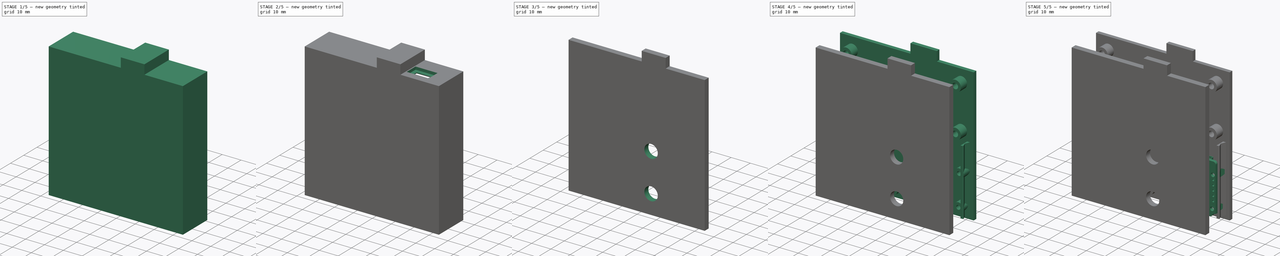
[diagram: build sequence overview — one tinted view per stage of 5, left to right]
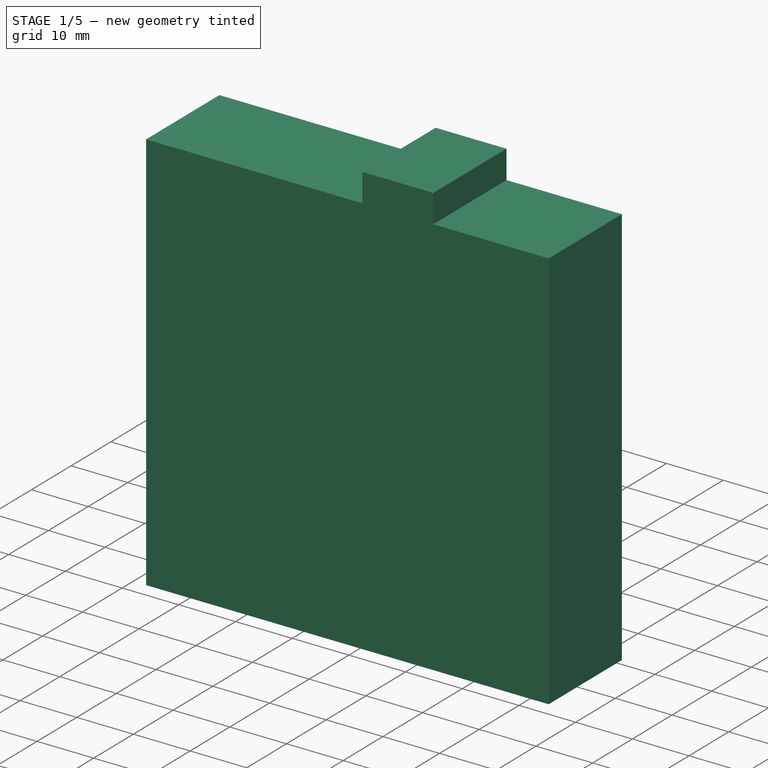
[diagram: stage 1 of 5 — iso view after this stage's code; geometry added in this stage tinted green]
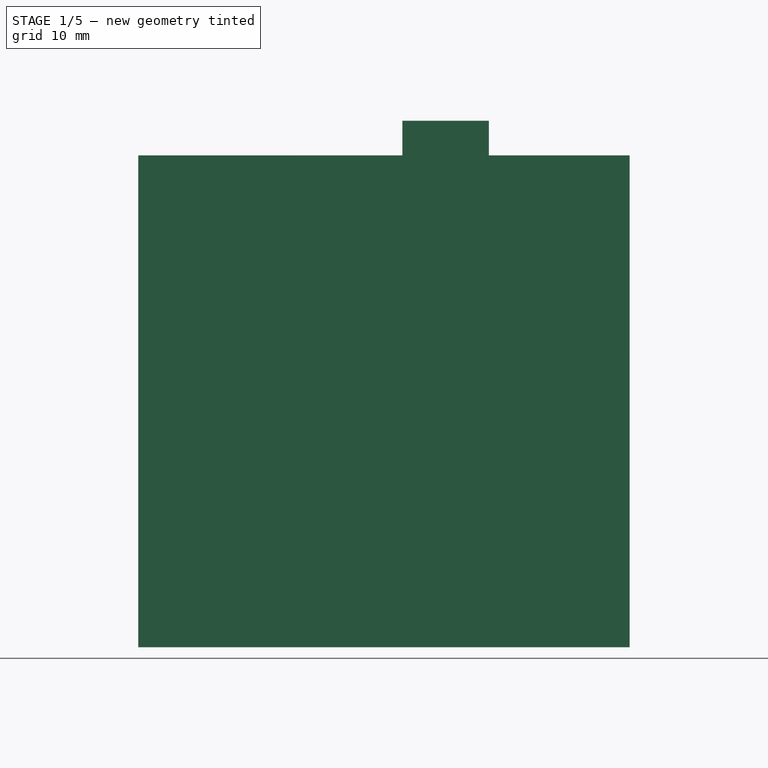
[diagram: stage 1 of 5 — front view after this stage's code; geometry added in this stage tinted green]
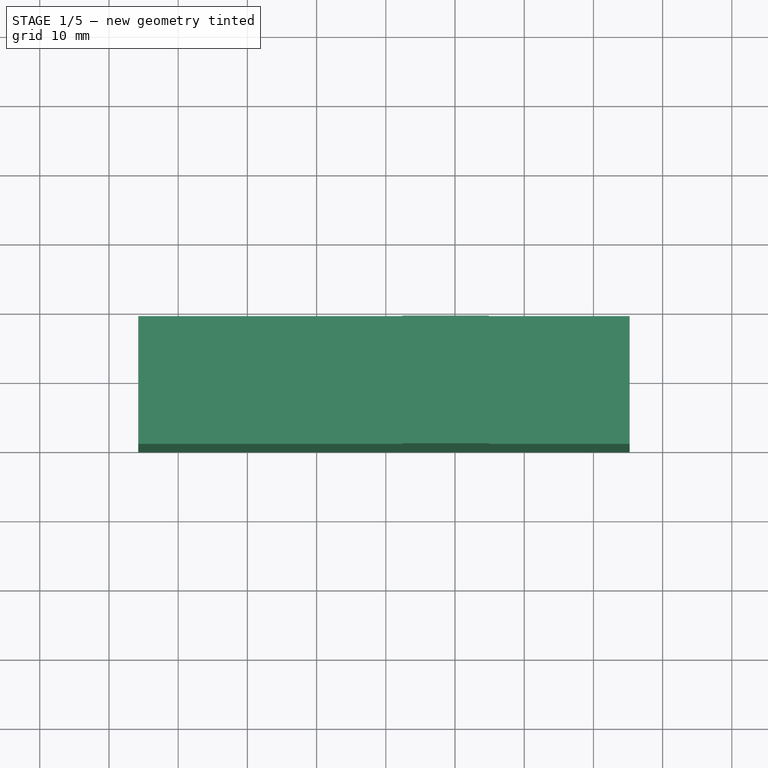
[diagram: stage 1 of 5 — top view after this stage's code; geometry added in this stage tinted green]
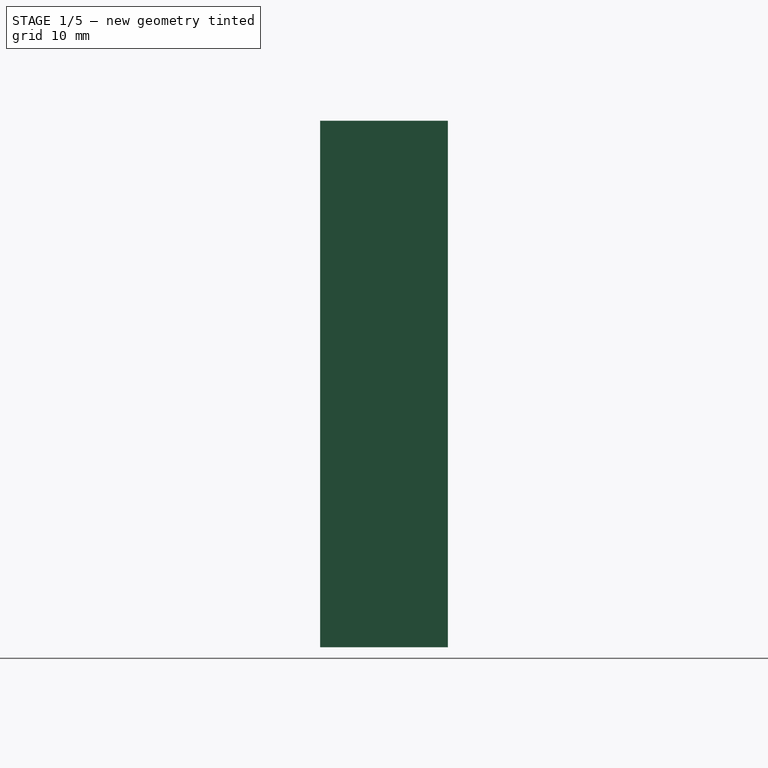
[diagram: stage 1 of 5 — right view after this stage's code; geometry added in this stage tinted green]
FCSTD DOCUMENT  (FreeCAD 0.19R24291 (Git))
Label: Flat
License: All rights reserved
LicenseURL: http://en.wikipedia.org/wiki/All_rights_reserved
objects: Part::Feature×69, Sketcher::SketchObject×16, PartDesign::Pocket×11, PartDesign::Pad×5, PartDesign::Body×2, Part::Compound2×1, PartDesign::Plane×1
note: 120 computed .brp shape members not serialized (recipe doc carries the construction recipe); baked Part::Feature solids carry a one-line shape summary decoded from their .brp

FEATURE [Part::Feature] Feature001  label="ACWB"
  Placement = pos=(-154,2,-108.2) rot=(-1,0,0;1.5708rad)
  shape: bbox 31.18 x 11.64 x 33.08 mm, 471 faces, 6 solids (baked)
FEATURE [Sketcher::SketchObject] Sketch003  label="CaseBaseSketch"
  FullyConstrained = true
  MapMode = 5
  Placement = pos=(0,0,0) rot=(1,0,0;1.5708rad)
  Support = -> [XZ_Plane]
  expr: Constraints[17] = 7.5 + 5
  expr: Constraints[16] = 30 + 4 + 4 + 33.08
  sketch-geometry (14):
    g0: LineSegment StartX=-35.76 StartY=31.05 StartZ=0 EndX=2.39 EndY=31.05 EndZ=0
    g1: LineSegment StartX=35.24 StartY=31.05 StartZ=0 EndX=35.24 EndY=-40.03 EndZ=0
    g2: LineSegment StartX=35.24 StartY=-40.03 StartZ=0 EndX=-35.76 EndY=-40.03 EndZ=0
    g3: LineSegment StartX=-35.76 StartY=-40.03 StartZ=0 EndX=-35.76 EndY=31.05 EndZ=0
    g4: LineSegment StartX=14.89 StartY=31.05 StartZ=0 EndX=14.89 EndY=36.05 EndZ=0
    g5: LineSegment StartX=14.89 StartY=36.05 StartZ=0 EndX=2.39 EndY=36.05 EndZ=0
    g6: LineSegment StartX=2.39 StartY=36.05 StartZ=0 EndX=2.39 EndY=31.05 EndZ=0
    g7: LineSegment StartX=14.89 StartY=31.05 StartZ=0 EndX=35.24 EndY=31.05 EndZ=0
    g8: LineSegment StartX=0 StartY=0 StartZ=0 EndX=0 EndY=28.05 EndZ=0
    g9: LineSegment StartX=0 StartY=14.37 StartZ=0 EndX=-32.76 EndY=14.37 EndZ=0
    g10: LineSegment StartX=0 StartY=14.37 StartZ=0 EndX=32.24 EndY=14.37 EndZ=0
    g11: LineSegment StartX=35.24 StartY=28.88 StartZ=0 EndX=8.64 EndY=28.88 EndZ=0
    g12: LineSegment StartX=2.39 StartY=31.05 StartZ=0 EndX=8.64 EndY=28.88 EndZ=0
    g13: LineSegment StartX=14.89 StartY=31.05 StartZ=0 EndX=8.64 EndY=28.88 EndZ=0
  constraints (41):
    c: Coincident(g7,g1)
    c: Coincident(g1,g2)
    c: Coincident(g2,g3)
    c: Coincident(g3,g0)
    c: Horizontal(g0)
    c: Horizontal(g2)
    c: Vertical(g1)
    c: Vertical(g3)
    c: Coincident(g4,g5)
    c: Coincident(g5,g6)
    c: Horizontal(g5)
    c: Vertical(g4)
    c: Vertical(g6)
    c: Tangent(g0,g7)
    c: Coincident(g0,g6)
    c: Coincident(g7,g4)
    c: DistanceY(g3,g3) = 71.08
    c: DistanceX(g5,g5) = 12.5
    c: Coincident(g8,g-1)
    c: PointOnObject(g8,g-2)
    c: DistanceY(g8,g8) = 28.05
    c: DistanceY(g8,g0) = 3
    c: PointOnObject(g9,g8)
    c: Horizontal(g9)
    c: DistanceX(g9,g9) = 32.76
    c: DistanceX(g0,g9) = 3
    c: Coincident(g10,g9)
    c: Horizontal(g10)
    c: DistanceX(g10,g10) = 32.24
    c: DistanceX(g10,g1) = 3
    c: DistanceY(g4,g4) = 5
    c: PointOnObject(g11,g1)
    c: Horizontal(g11)
    c: DistanceX(g11,g11) = 26.6
    c: Coincident(g12,g0)
    c: Coincident(g12,g11)
    c: Coincident(g13,g4)
    c: Coincident(g13,g11)
    c: Equal(g13,g12)
    c: DistanceY(g11,g1) = 2.17
    c: DistanceY(g9,g0) = 16.68
FEATURE [PartDesign::Pad] Pad  label="caseBasePad"
  Direction = (1,1,1)
  Length = 10
  Length2 = 8.45
  Placement = pos=(0,0,0) rot=(1,0,0;1.5708rad)
  Profile = -> Sketch003
  Type = 4
  expr: Length2 = 2 + 4.45 + 2
FEATURE [Sketcher::SketchObject] Sketch004  label="caseBaseInteriorCut"
  ExternalGeometry = -> [Pad]
  FullyConstrained = true
  MapMode = 5
  Placement = pos=(0,8.45,-3.7e-15) rot=(-1,0,0;1.5708rad)
  Support = -> [Pad]
  sketch-geometry (8):
    g0: LineSegment StartX=-33.76 StartY=38.03 StartZ=0 EndX=33.24 EndY=38.03 EndZ=0
    g1: LineSegment StartX=33.24 StartY=38.03 StartZ=0 EndX=33.24 EndY=-29.05 EndZ=0
    g2: LineSegment StartX=33.24 StartY=-29.05 StartZ=0 EndX=12.89 EndY=-29.05 EndZ=0
    g3: LineSegment StartX=-33.76 StartY=-29.05 StartZ=0 EndX=-33.76 EndY=38.03 EndZ=0
    g4: LineSegment StartX=12.89 StartY=-29.05 StartZ=0 EndX=12.89 EndY=-34.05 EndZ=0
    g5: LineSegment StartX=12.89 StartY=-34.05 StartZ=0 EndX=4.39 EndY=-34.05 EndZ=0
    g6: LineSegment StartX=4.39 StartY=-34.05 StartZ=0 EndX=4.39 EndY=-29.05 EndZ=0
    g7: LineSegment StartX=4.39 StartY=-29.05 StartZ=0 EndX=-33.76 EndY=-29.05 EndZ=0
  constraints (23):
    c: Coincident(g0,g1)
    c: Coincident(g1,g2)
    c: Coincident(g7,g3)
    c: Coincident(g3,g0)
    c: Horizontal(g0)
    c: Horizontal(g2)
    c: Vertical(g1)
    c: Vertical(g3)
    c: Coincident(g4,g5)
    c: Coincident(g5,g6)
    c: Horizontal(g5)
    c: Vertical(g4)
    c: Vertical(g6)
    c: Tangent(g2,g7)
    c: DistanceY(g-7,g5) = 2
    c: DistanceX(g-7,g5) = 2
    c: DistanceX(g4,g-8) = 2
    c: Coincident(g7,g6)
    c: Coincident(g4,g2)
    c: DistanceX(g1,g-10) = 2
    c: DistanceY(g-10,g1) = 2
    c: DistanceX(g-5,g3) = 2
    c: DistanceY(g0,g-4) = 2
FEATURE [PartDesign::Pocket] Pocket  label="caseInterior"
  BaseFeature = -> Pad
  Length = 15.45
  Length2 = 100
  Placement = pos=(0,0,0) rot=(1,0,0;1.5708rad)
  Profile = -> Sketch004
  Type = 0
FEATURE [Sketcher::SketchObject] Sketch005  label="BaseHoles"
  ExternalGeometry = -> [Pocket]
  FullyConstrained = true
  MapMode = 5
  Placement = pos=(0,-7,-1e-16) rot=(-1,0,0;1.5708rad)
  Support = -> [Pocket]
  expr: Constraints[64] = 11.43 / 2
  sketch-geometry (32):
    g0: LineSegment StartX=33.24 StartY=-29.05 StartZ=0 EndX=28.74 EndY=-29.05 EndZ=0
    g1: LineSegment StartX=28.74 StartY=-29.05 StartZ=0 EndX=28.74 EndY=-24.55 EndZ=0
    g2: LineSegment StartX=28.74 StartY=-24.55 StartZ=0 EndX=33.24 EndY=-24.55 EndZ=0
    g3: LineSegment StartX=33.24 StartY=-24.55 StartZ=0 EndX=33.24 EndY=-29.05 EndZ=0
    g4: LineSegment StartX=-33.76 StartY=38.03 StartZ=0 EndX=-29.29 EndY=38.03 EndZ=0
    g5: LineSegment StartX=-29.29 StartY=38.03 StartZ=0 EndX=-29.29 EndY=33.77 EndZ=0
    g6: LineSegment StartX=-29.29 StartY=33.77 StartZ=0 EndX=-33.76 EndY=33.77 EndZ=0
    g7: LineSegment StartX=-33.76 StartY=33.77 StartZ=0 EndX=-33.76 EndY=38.03 EndZ=0
    g8: Circle CenterX=-4.91 CenterY=33.77 CenterZ=0 NormalX=0 NormalY=0 NormalZ=1 AngleXU=0 Radius=3
    g9: Circle CenterX=-29.29 CenterY=33.77 CenterZ=0 NormalX=0 NormalY=0 NormalZ=1 AngleXU=0 Radius=3
    g10: Circle CenterX=-29.29 CenterY=7.54 CenterZ=0 NormalX=0 NormalY=0 NormalZ=1 AngleXU=0 Radius=3
    g11: Circle CenterX=-4.91 CenterY=7.54 CenterZ=0 NormalX=0 NormalY=0 NormalZ=1 AngleXU=0 Radius=3
    g12: LineSegment StartX=33.24 StartY=38.03 StartZ=0 EndX=30.36 EndY=38.03 EndZ=0
    g13: LineSegment StartX=30.36 StartY=38.03 StartZ=0 EndX=30.36 EndY=33.28 EndZ=0
    g14: LineSegment StartX=30.36 StartY=33.28 StartZ=0 EndX=33.24 EndY=33.28 EndZ=0
    g15: LineSegment StartX=33.24 StartY=33.28 StartZ=0 EndX=33.24 EndY=38.03 EndZ=0
    g16: Circle CenterX=30.36 CenterY=33.28 CenterZ=0 NormalX=0 NormalY=0 NormalZ=1 AngleXU=0 Radius=2.5
    g17: Circle CenterX=18.93 CenterY=33.28 CenterZ=0 NormalX=0 NormalY=0 NormalZ=1 AngleXU=0 Radius=2.5
    g18: Circle CenterX=18.55 CenterY=16.9 CenterZ=0 NormalX=0 NormalY=0 NormalZ=1 AngleXU=0 Radius=2.5
    g19: Circle CenterX=30.74 CenterY=16.9 CenterZ=0 NormalX=0 NormalY=0 NormalZ=1 AngleXU=0 Radius=2.5
    g20: LineSegment StartX=18.93 StartY=33.28 StartZ=0 EndX=24.645 EndY=33.28 EndZ=0
    g21: LineSegment StartX=24.645 StartY=33.28 StartZ=0 EndX=24.645 EndY=16.9 EndZ=0
    g22: LineSegment StartX=24.645 StartY=16.9 StartZ=0 EndX=18.93 EndY=16.9 EndZ=0
    g23: LineSegment StartX=18.93 StartY=16.9 StartZ=0 EndX=18.93 EndY=33.28 EndZ=0
    g24: Circle CenterX=28.74 CenterY=-24.55 CenterZ=0 NormalX=0 NormalY=0 NormalZ=1 AngleXU=0 Radius=3
    g25: Circle CenterX=-29.26 CenterY=-24.55 CenterZ=0 NormalX=0 NormalY=0 NormalZ=1 AngleXU=0 Radius=3
    g26: Circle CenterX=-29.26 CenterY=-1.55 CenterZ=0 NormalX=0 NormalY=0 NormalZ=1 AngleXU=0 Radius=3
    g27: Circle CenterX=28.74 CenterY=-1.55 CenterZ=0 NormalX=0 NormalY=0 NormalZ=1 AngleXU=0 Radius=3
    g28: LineSegment StartX=28.74 StartY=-24.55 StartZ=0 EndX=-29.26 EndY=-24.55 EndZ=0
    g29: LineSegment StartX=-29.26 StartY=-24.55 StartZ=0 EndX=-29.26 EndY=-1.55 EndZ=0
    g30: LineSegment StartX=-29.26 StartY=-1.55 StartZ=0 EndX=28.74 EndY=-1.55 EndZ=0
    g31: LineSegment StartX=28.74 StartY=-1.55 StartZ=0 EndX=28.74 EndY=-24.55 EndZ=0
  constraints (85):
    c: Coincident(g0,g1)
    c: Coincident(g1,g2)
    c: Coincident(g2,g3)
    c: Coincident(g3,g0)
    c: Horizontal(g0)
    c: Horizontal(g2)
    c: Vertical(g1)
    c: Vertical(g3)
    c: PointOnObject(g0,g-6)
    c: Coincident(g4,g5)
    c: Coincident(g5,g6)
    c: Coincident(g6,g7)
    c: Coincident(g7,g4)
    c: Horizontal(g4)
    c: Horizontal(g6)
    c: Vertical(g5)
    c: Vertical(g7)
    c: Coincident(g4,g-4)
    c: DistanceX(g9,g8) = 24.38
    c: DistanceY(g9,g8) = 0
    c: DistanceY(g10,g11) = 0
    c: DistanceY(g10,g9) = 26.23
    c: DistanceX(g10,g11) = 24.38
    c: DistanceX(g8,g11) = 0
    c: Radius(g10) = 3
    c: Equal(g10,g11)
    c: Equal(g10,g8)
    c: Equal(g10,g9)
    c: DistanceY(g5,g5) = 4.26
    c: DistanceX(g6,g6) = 4.47
    c: Coincident(g9,g5)
    c: PointOnObject(g2,g-5)
    c: DistanceX(g2,g2) = 4.5
    c: DistanceY(g1,g1) = 4.5
    c: Coincident(g12,g13)
    c: Coincident(g13,g14)
    c: Coincident(g14,g15)
    c: Coincident(g15,g12)
    c: Horizontal(g12)
    c: Horizontal(g14)
    c: Vertical(g13)
    c: Vertical(g15)
    c: Coincident(g12,g-5)
    c: DistanceX(g14,g14) = 2.88
    c: DistanceY(g13,g13) = 4.75
    c: Coincident(g16,g13)
    c: Radius(g19) = 2.5
    c: Equal(g19,g18)
    c: Equal(g19,g17)
    c: Equal(g19,g16)
    c: DistanceX(g18,g19) = 12.19
    c: DistanceY(g19,g16) = 16.38
    c: DistanceX(g17,g16) = 11.43
    c: DistanceY(g17,g16) = 0
    c: Coincident(g20,g21)
    c: Coincident(g21,g22)
    c: Coincident(g22,g23)
    c: Coincident(g23,g20)
    c: Horizontal(g20)
    c: Horizontal(g22)
    c: Vertical(g21)
    c: Vertical(g23)
    c: Coincident(g20,g17)
    c: DistanceY(g21,g21) = 16.38
    c: DistanceX(g22,g22) = 5.715
    c: Symmetric(g18,g19,g21)
    c: Coincident(g24,g1)
    c: Radius(g27) = 3
    c: Equal(g27,g24)
    c: Equal(g27,g25)
    c: Equal(g27,g26)
    c: Coincident(g28,g29)
    c: Coincident(g29,g30)
    c: Coincident(g30,g31)
    c: Coincident(g31,g28)
    c: Horizontal(g28)
    c: Horizontal(g30)
    c: Vertical(g29)
    c: Vertical(g31)
    c: Coincident(g28,g24)
    c: Coincident(g26,g29)
    c: Coincident(g28,g25)
    c: Coincident(g27,g30)
    c: DistanceX(g30,g30) = 58
    c: DistanceY(g31,g31) = 23
FEATURE [PartDesign::Pad] Pad001  label="baseOfPoles"
  BaseFeature = -> Pocket
  Direction = (1,1,1)
  Length = 2
  Length2 = 100
  Placement = pos=(0,0,0) rot=(1,0,0;1.5708rad)
  Profile = -> Sketch005
  Type = 0
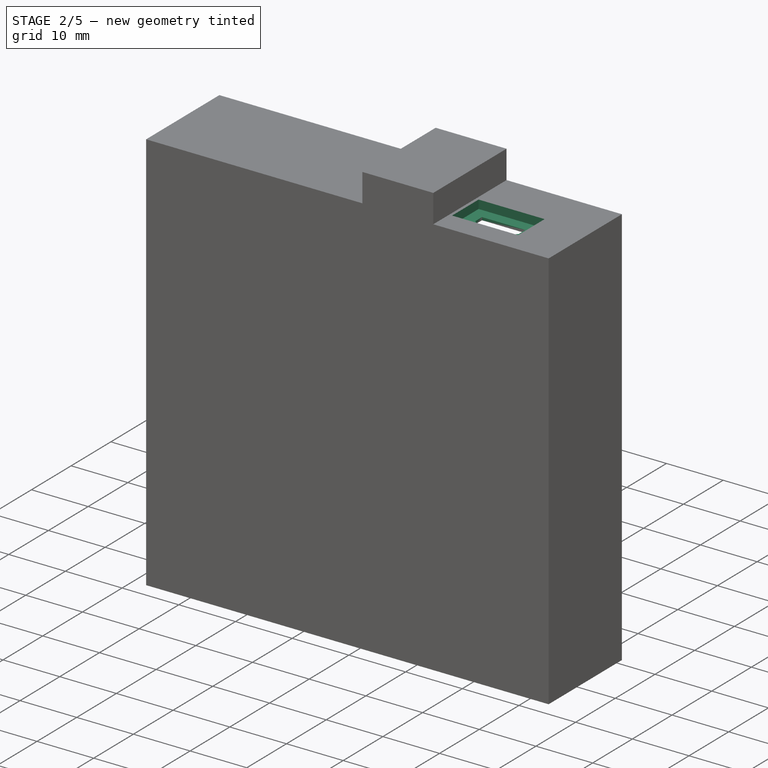
[diagram: stage 2 of 5 — iso view after this stage's code; geometry added in this stage tinted green]
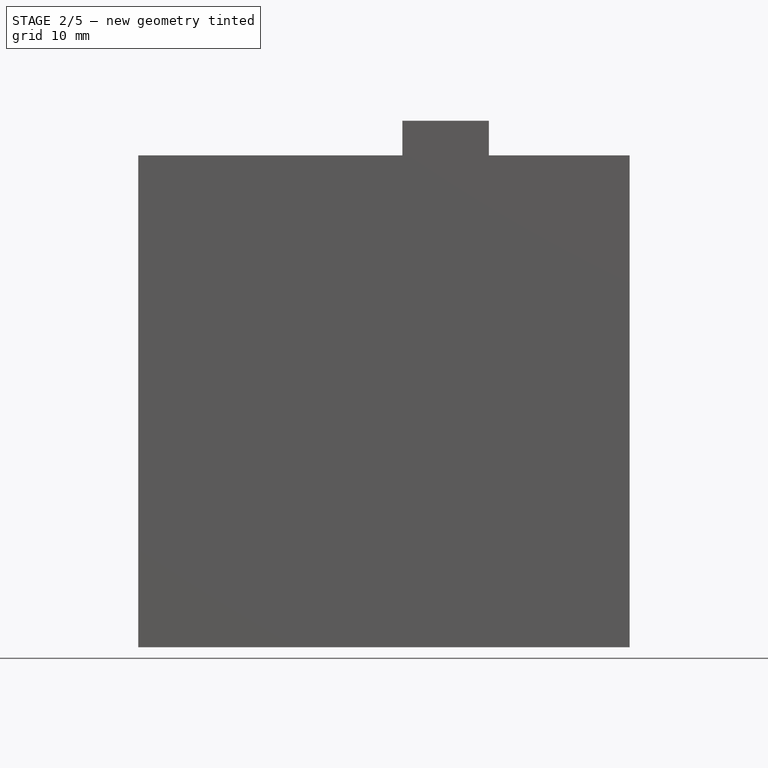
[diagram: stage 2 of 5 — front view after this stage's code; geometry added in this stage tinted green]
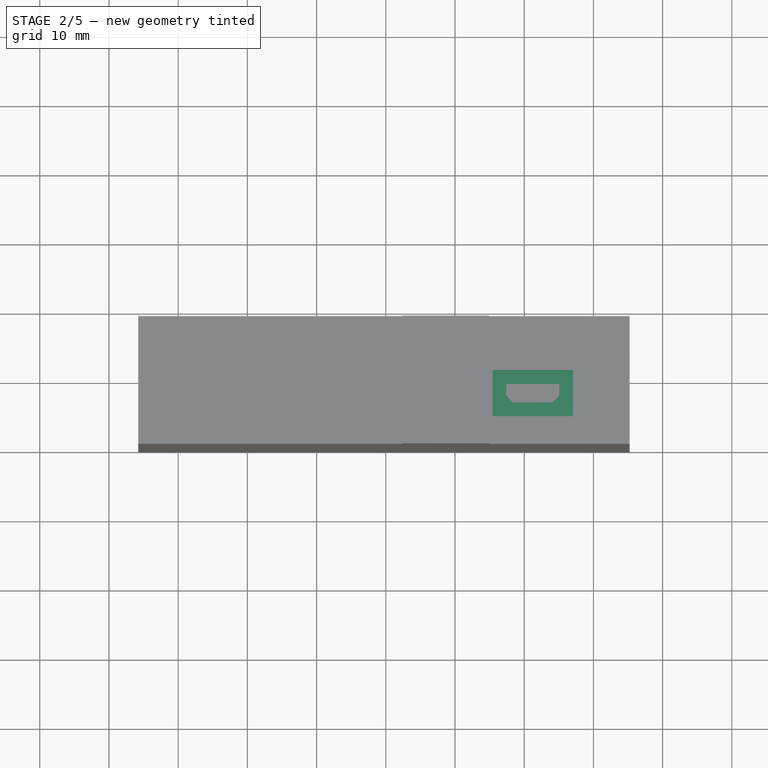
[diagram: stage 2 of 5 — top view after this stage's code; geometry added in this stage tinted green]
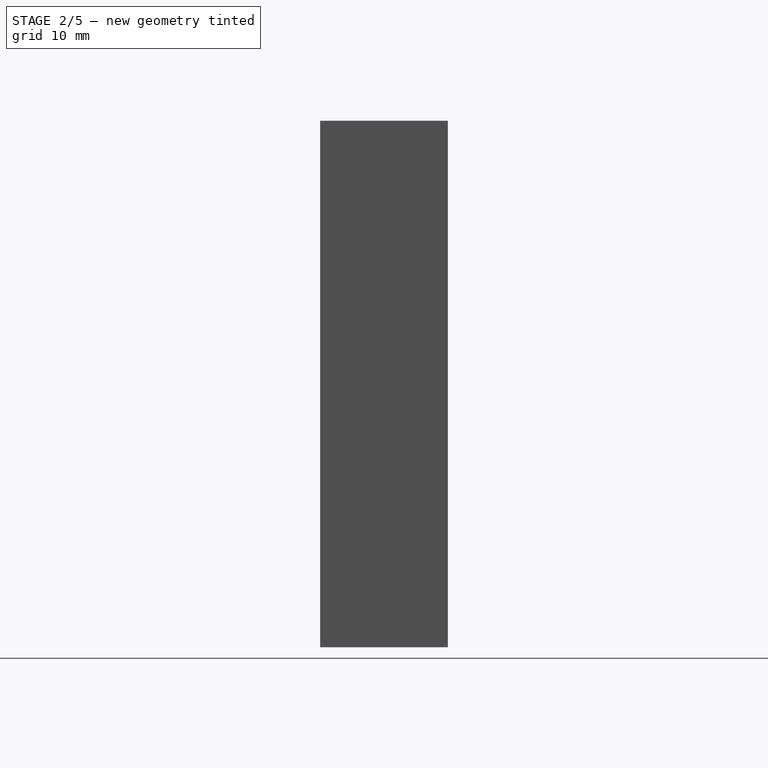
[diagram: stage 2 of 5 — right view after this stage's code; geometry added in this stage tinted green]
FEATURE [Sketcher::SketchObject] Sketch  label="cableInletSketch"
  FullyConstrained = false
  MapMode = 5
  Placement = pos=(0,8e-15,-38.03) rot=(0,0,1;3.14159rad)
  sketch-geometry (3):
    g0: Circle CenterX=-9.5 CenterY=-0.0988913 CenterZ=0 NormalX=0 NormalY=0 NormalZ=1 AngleXU=0 Radius=5.75
    g1: LineSegment StartX=-9.5 StartY=-0.0988913 StartZ=0 EndX=-9.5 EndY=-0.197783 EndZ=0
    g2: LineSegment StartX=-9.5 StartY=-0.0988913 StartZ=0 EndX=-9.5 EndY=0 EndZ=0
  constraints (7):
    c: Coincident(g1,g0)
    c: Coincident(g2,g0)
    c: PointOnObject(g2,g-1)
    c: Equal(g2,g1)
    c: Angle(g2,g-1) = 1.5708
    c: DistanceX(g0,g-1) = 9.5
    c: Radius(g0) = 5.75
FEATURE [PartDesign::Pocket] Pocket002  label="ThreadingInletHole"
  BaseFeature = -> Pad001
  Length = 5
  Length2 = 100
  Placement = pos=(0,0,0) rot=(1,0,0;1.5708rad)
  Profile = -> Sketch
  Type = 0
FEATURE [Sketcher::SketchObject] Sketch011  label="SDcardHoleSketch"
  ExternalGeometry = -> [Pocket002]
  FullyConstrained = true
  MapMode = 5
  Placement = pos=(0,8.45,-3.7e-15) rot=(-1,0,0;1.5708rad)
  Support = -> [Pocket002]
  sketch-geometry (6):
    g0: LineSegment StartX=-41.26 StartY=-5.37 StartZ=0 EndX=-26.26 EndY=-5.37 EndZ=0
    g1: LineSegment StartX=-26.26 StartY=-5.37 StartZ=0 EndX=-26.26 EndY=-17.37 EndZ=0
    g2: LineSegment StartX=-26.26 StartY=-17.37 StartZ=0 EndX=-41.26 EndY=-17.37 EndZ=0
    g3: LineSegment StartX=-41.26 StartY=-17.37 StartZ=0 EndX=-41.26 EndY=-5.37 EndZ=0
    g4: LineSegment StartX=-41.26 StartY=-17.37 StartZ=0 EndX=-33.76 EndY=-29.05 EndZ=0
    g5: LineSegment StartX=-33.76 StartY=-29.05 StartZ=0 EndX=-26.26 EndY=-17.37 EndZ=0
  constraints (16):
    c: Coincident(g0,g1)
    c: Coincident(g1,g2)
    c: Coincident(g2,g3)
    c: Coincident(g3,g0)
    c: Horizontal(g0)
    c: Horizontal(g2)
    c: Vertical(g1)
    c: Vertical(g3)
    c: DistanceY(g1,g1) = 12
    c: DistanceY(g-3,g2) = 11.68
    c: Coincident(g4,g2)
    c: Coincident(g4,g-4)
    c: Coincident(g5,g4)
    c: Coincident(g5,g1)
    c: Equal(g5,g4)
    c: DistanceX(g0,g0) = 15
FEATURE [PartDesign::Pocket] Pocket003  label="SDcardHole"
  BaseFeature = -> Pocket002
  Length = 14
  Length2 = 100
  Placement = pos=(0,0,0) rot=(1,0,0;1.5708rad)
  Profile = -> Sketch011
  Type = 0
FEATURE [Sketcher::SketchObject] Sketch012  label="chargingPortHoleSketch"
  ExternalGeometry = -> [Pocket003]
  FullyConstrained = true
  MapMode = 5
  Placement = pos=(0,6.9e-15,31.05) rot=(0,0,1;3.14159rad)
  Support = -> [Pocket003]
  expr: Constraints[17] = 2 + 2 + 2
  expr: Constraints[12] = 5.75
  expr: Constraints[15] = 1.66
  sketch-geometry (6):
    g0: LineSegment StartX=-17.41 StartY=1.32 StartZ=0 EndX=-25.06 EndY=1.32 EndZ=0
    g1: LineSegment StartX=-25.06 StartY=1.32 StartZ=0 EndX=-25.06 EndY=2.98 EndZ=0
    g2: LineSegment StartX=-24.11 StartY=4 StartZ=0 EndX=-18.36 EndY=4 EndZ=0
    g3: LineSegment StartX=-17.41 StartY=2.98 StartZ=0 EndX=-17.41 EndY=1.32 EndZ=0
    g4: LineSegment StartX=-25.06 StartY=2.98 StartZ=0 EndX=-24.11 EndY=4 EndZ=0
    g5: LineSegment StartX=-18.36 StartY=4 StartZ=0 EndX=-17.41 EndY=2.98 EndZ=0
  constraints (18):
    c: Coincident(g0,g1)
    c: Coincident(g3,g0)
    c: Horizontal(g0)
    c: Horizontal(g2)
    c: Vertical(g1)
    c: Vertical(g3)
    c: Coincident(g2,g4)
    c: Coincident(g1,g4)
    c: Coincident(g2,g5)
    c: Coincident(g3,g5)
    c: Equal(g1,g3)
    c: DistanceX(g0,g0) = 7.65
    c: DistanceX(g2,g2) = 5.75
    c: Equal(g4,g5)
    c: DistanceY(g1,g2) = 1.02
    c: DistanceY(g3,g3) = 1.66
    c: DistanceX(g0,g-6) = 2.52
    c: DistanceY(g2,g-6) = 6
FEATURE [PartDesign::Pocket] Pocket004  label="chargingPortHole"
  BaseFeature = -> Pocket003
  Length = 5
  Length2 = 100
  Placement = pos=(0,0,0) rot=(1,0,0;1.5708rad)
  Profile = -> Sketch012
  Type = 0
FEATURE [Sketcher::SketchObject] Sketch013  label="chargingPortFlushingSketch"
  ExternalGeometry = -> [Pocket004]
  FullyConstrained = true
  MapMode = 5
  Placement = pos=(0,6.9e-15,31.05) rot=(0,0,1;3.14159rad)
  Support = -> [Pocket004]
  sketch-geometry (8):
    g0: LineSegment StartX=-27.06 StartY=6 StartZ=0 EndX=-15.41 EndY=6 EndZ=0
    g1: LineSegment StartX=-15.41 StartY=6 StartZ=0 EndX=-15.41 EndY=-0.68 EndZ=0
    g2: LineSegment StartX=-15.41 StartY=-0.68 StartZ=0 EndX=-27.06 EndY=-0.68 EndZ=0
    g3: LineSegment StartX=-27.06 StartY=-0.68 StartZ=0 EndX=-27.06 EndY=6 EndZ=0
    g4: LineSegment StartX=-25.06 StartY=4 StartZ=0 EndX=-17.41 EndY=4 EndZ=0
    g5: LineSegment StartX=-17.41 StartY=4 StartZ=0 EndX=-17.41 EndY=1.32 EndZ=0
    g6: LineSegment StartX=-17.41 StartY=1.32 StartZ=0 EndX=-25.06 EndY=1.32 EndZ=0
    g7: LineSegment StartX=-25.06 StartY=1.32 StartZ=0 EndX=-25.06 EndY=4 EndZ=0
  constraints (24):
    c: Coincident(g0,g1)
    c: Coincident(g1,g2)
    c: Coincident(g2,g3)
    c: Coincident(g3,g0)
    c: Horizontal(g0)
    c: Horizontal(g2)
    c: Vertical(g1)
    c: Vertical(g3)
    c: Coincident(g4,g5)
    c: Coincident(g5,g6)
    c: Coincident(g6,g7)
    c: Coincident(g7,g4)
    c: Horizontal(g4)
    c: Horizontal(g6)
    c: Vertical(g5)
    c: Vertical(g7)
    c: PointOnObject(g-4,g7)
    c: PointOnObject(g-5,g4)
    c: PointOnObject(g-3,g6)
    c: PointOnObject(g-6,g5)
    c: DistanceX(g0,g4) = 2
    c: DistanceY(g4,g0) = 2
    c: DistanceX(g5,g1) = 2
    c: DistanceY(g1,g5) = 2
FEATURE [PartDesign::Pocket] Pocket005  label="chargingPortFlushing"
  BaseFeature = -> Pocket004
  Length = 1.5
  Length2 = 100
  Placement = pos=(0,0,0) rot=(1,0,0;1.5708rad)
  Profile = -> Sketch013
  Type = 0
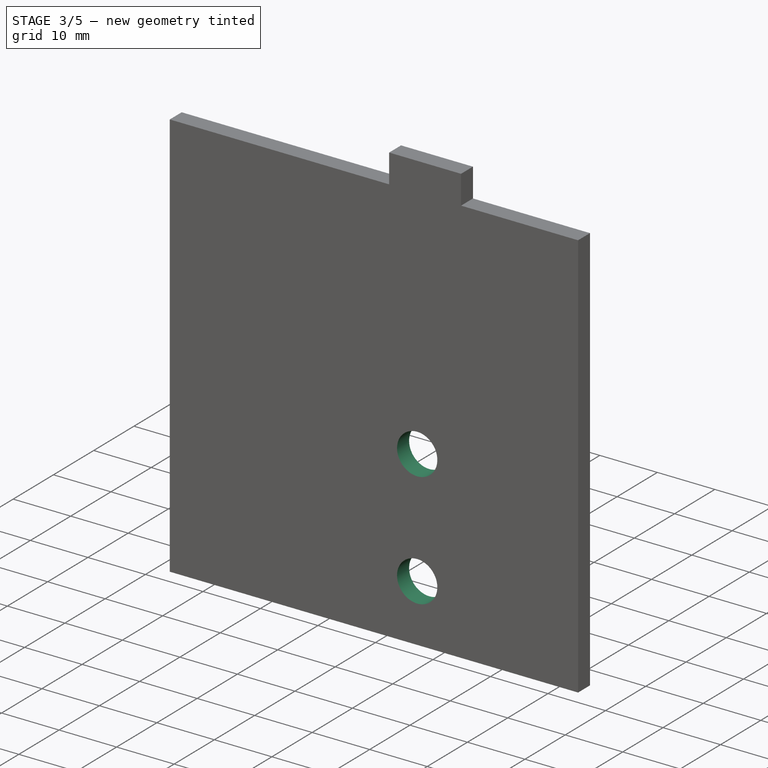
[diagram: stage 3 of 5 — iso view after this stage's code; geometry added in this stage tinted green]
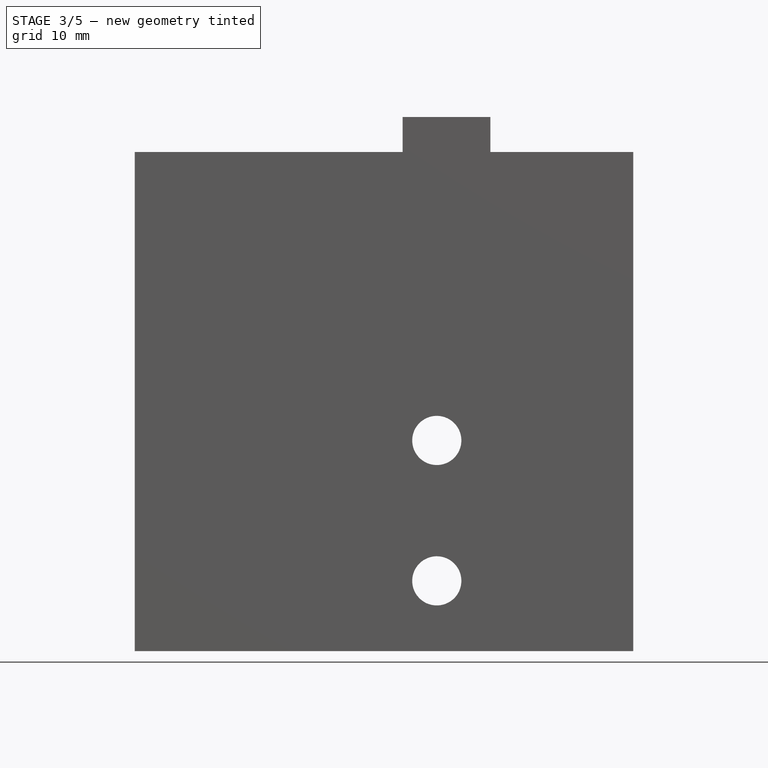
[diagram: stage 3 of 5 — front view after this stage's code; geometry added in this stage tinted green]
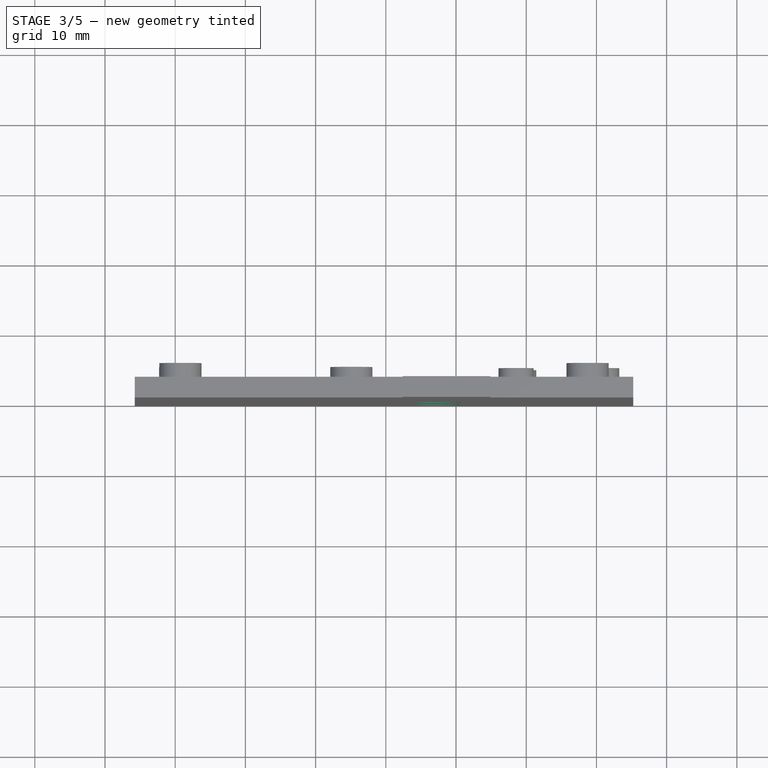
[diagram: stage 3 of 5 — top view after this stage's code; geometry added in this stage tinted green]
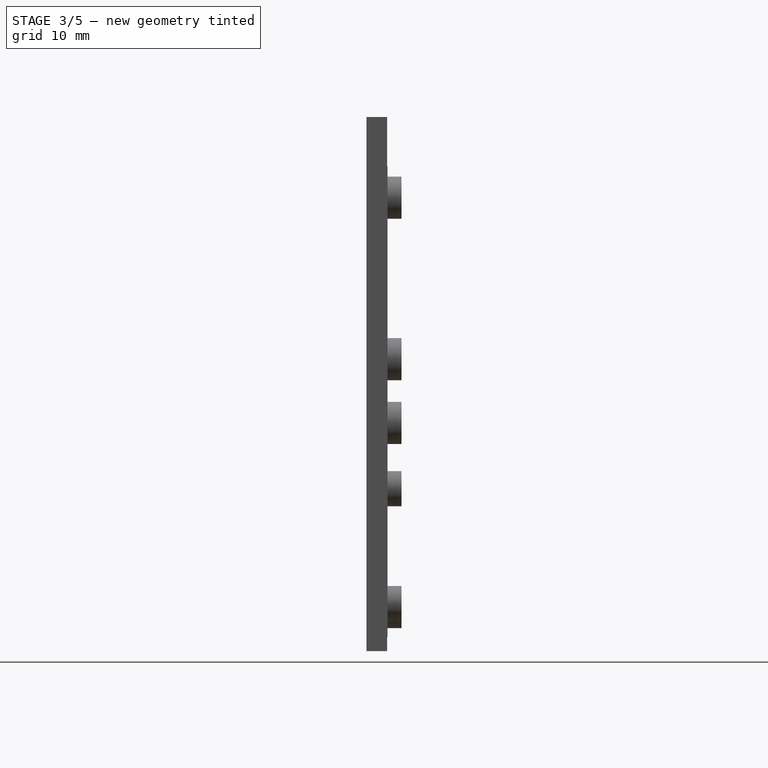
[diagram: stage 3 of 5 — right view after this stage's code; geometry added in this stage tinted green]
FEATURE [Sketcher::SketchObject] Sketch014  label="mountHoleSketch"
  ExternalGeometry = -> [Pocket005]
  FullyConstrained = false
  MapMode = 5
  Placement = pos=(0,-7,-1e-16) rot=(-1,0,0;1.5708rad)
  Support = -> [Pocket005]
  expr: Constraints[11] = 18.34 / 2
  sketch-geometry (8):
    g0: LineSegment StartX=-1.91 StartY=38.03 StartZ=0 EndX=16.43 EndY=38.03 EndZ=0
    g1: LineSegment StartX=16.43 StartY=38.03 StartZ=0 EndX=16.43 EndY=30.03 EndZ=0
    g2: LineSegment StartX=16.43 StartY=30.03 StartZ=0 EndX=-1.91 EndY=30.03 EndZ=0
    g3: LineSegment StartX=-1.91 StartY=30.03 StartZ=0 EndX=-1.91 EndY=38.03 EndZ=0
    g4: LineSegment StartX=-1.91 StartY=30.03 StartZ=0 EndX=7.26 EndY=30.03 EndZ=0
    g5: LineSegment StartX=7.26 StartY=35.03 StartZ=0 EndX=7.26 EndY=10.03 EndZ=0
    g6: Circle CenterX=7.26 CenterY=30.03 CenterZ=0 NormalX=0 NormalY=0 NormalZ=1 AngleXU=0 Radius=3.5
    g7: Circle CenterX=7.26 CenterY=10.03 CenterZ=0 NormalX=0 NormalY=0 NormalZ=1 AngleXU=0 Radius=3.5
  constraints (20):
    c: Coincident(g0,g1)
    c: Coincident(g1,g2)
    c: Coincident(g2,g3)
    c: Coincident(g3,g0)
    c: Horizontal(g0)
    c: Horizontal(g2)
    c: Vertical(g1)
    c: Vertical(g3)
    c: DistanceY(g3,g3) = 8
    c: Coincident(g4,g2)
    c: PointOnObject(g4,g2)
    c: DistanceX(g4,g1) = 9.17
    c: Vertical(g5)
    c: PointOnObject(g4,g5)
    c: DistanceY(g5,g5) = 25
    c: DistanceY(g2,g5) = 5
    c: Coincident(g6,g4)
    c: Coincident(g7,g5)
    c: Equal(g6,g7)
    c: Radius(g7) = 3.5
FEATURE [PartDesign::Pocket] Pocket006  label="mountHoles"
  BaseFeature = -> Pocket005
  Length = 5
  Length2 = 100
  Placement = pos=(0,0,0) rot=(1,0,0;1.5708rad)
  Profile = -> Sketch014
  Type = 0
FEATURE [PartDesign::Body] Body004  label="caseLid"
  Group = -> [Sketch007,Pad003,Sketch009,Pad004,Sketch010,Pocket001,DatumPlane,Sketch016,Pad006,Sketch017,Pocket007,Sketch018,Pocket008]
  Origin = -> Origin004
  Tip = -> Pocket008
FEATURE [PartDesign::Pocket] Pocket009  label="ScrewHoles"
  BaseFeature = -> Pocket006
  Length = 2
  Length2 = 100
  Placement = pos=(0,0,0) rot=(1,0,0;1.5708rad)
  Profile = -> Sketch006
  Type = 0
FEATURE [Sketcher::SketchObject] Sketch019  label="cutToFlatSketch"
  ExternalGeometry = -> [Pocket009]
  FullyConstrained = true
  MapMode = 5
  Placement = pos=(0,8.45,-4.7e-15) rot=(-1,0,0;1.5708rad)
  Support = -> [Pocket009]
  sketch-geometry (8):
    g0: LineSegment StartX=-33.76 StartY=38.03 StartZ=0 EndX=33.24 EndY=38.03 EndZ=0
    g1: LineSegment StartX=33.24 StartY=38.03 StartZ=0 EndX=33.24 EndY=-29.05 EndZ=0
    g2: LineSegment StartX=33.24 StartY=-29.05 StartZ=0 EndX=-33.76 EndY=-29.05 EndZ=0
    g3: LineSegment StartX=-33.76 StartY=-29.05 StartZ=0 EndX=-33.76 EndY=38.03 EndZ=0
    g4: LineSegment StartX=-50 StartY=50 StartZ=0 EndX=50 EndY=50 EndZ=0
    g5: LineSegment StartX=50 StartY=50 StartZ=0 EndX=50 EndY=-50 EndZ=0
    g6: LineSegment StartX=50 StartY=-50 StartZ=0 EndX=-50 EndY=-50 EndZ=0
    g7: LineSegment StartX=-50 StartY=-50 StartZ=0 EndX=-50 EndY=50 EndZ=0
  constraints (21):
    c: Coincident(g0,g1)
    c: Coincident(g1,g2)
    c: Coincident(g2,g3)
    c: Coincident(g3,g0)
    c: Horizontal(g0)
    c: Horizontal(g2)
    c: Vertical(g1)
    c: Vertical(g3)
    c: Coincident(g0,g-3)
    c: Coincident(g1,g-4)
    c: Coincident(g4,g5)
    c: Coincident(g5,g6)
    c: Coincident(g6,g7)
    c: Coincident(g7,g4)
    c: Horizontal(g4)
    c: Horizontal(g6)
    c: Vertical(g5)
    c: Vertical(g7)
    c: Symmetric(g4,g5,g-1)
    c: DistanceX(g4,g4) = 100
    c: DistanceY(g7,g7) = 100
FEATURE [PartDesign::Pocket] Pocket010  label="CutToFlat"
  BaseFeature = -> Pocket009
  Length = 15.5
  Length2 = 100
  Placement = pos=(0,0,0) rot=(1,0,0;1.5708rad)
  Profile = -> Sketch019
  Type = 0
FEATURE [PartDesign::Body] Body  label="caseBase"
  Group = -> [Sketch003,Pad,Sketch004,Pocket,Sketch005,Pad001,Sketch006,Sketch,Pocket002,Sketch011,Pocket003,Sketch012,Pocket004,Sketch013,Pocket005,Sketch014,Pocket006,Pocket009,Sketch019,Pocket010]
  Origin = -> Origin
  Tip = -> Pocket010
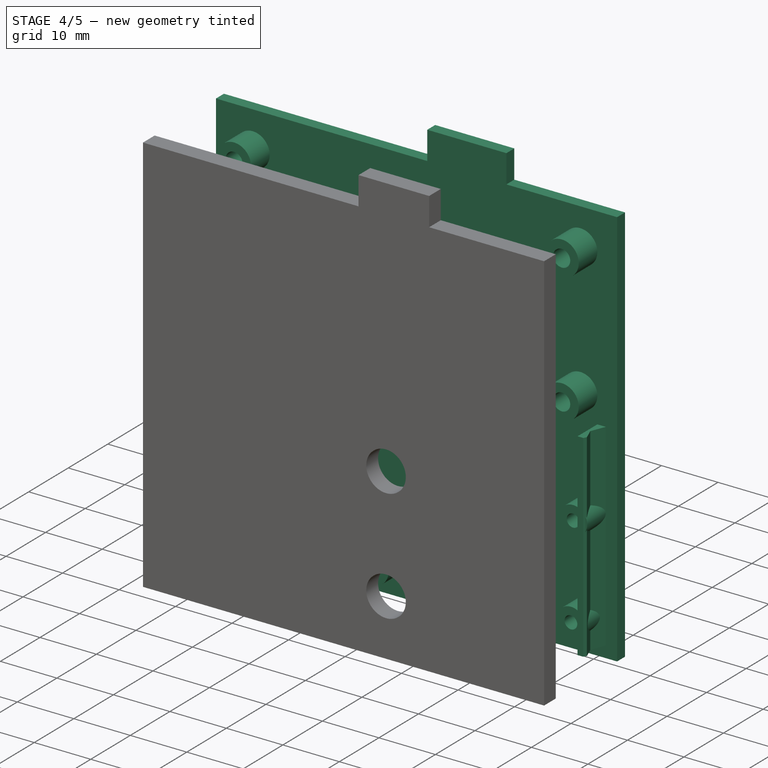
[diagram: stage 4 of 5 — iso view after this stage's code; geometry added in this stage tinted green]
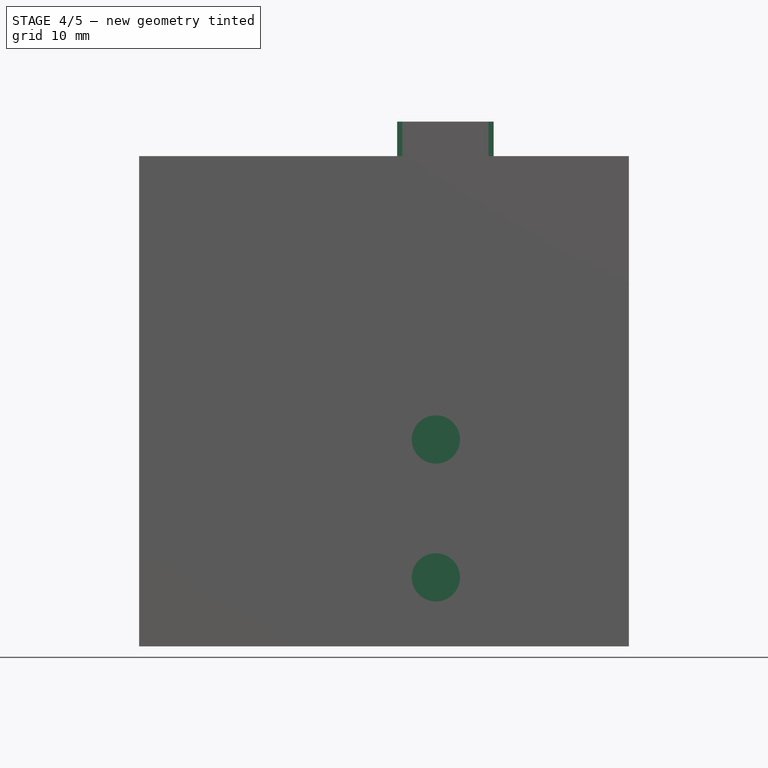
[diagram: stage 4 of 5 — front view after this stage's code; geometry added in this stage tinted green]
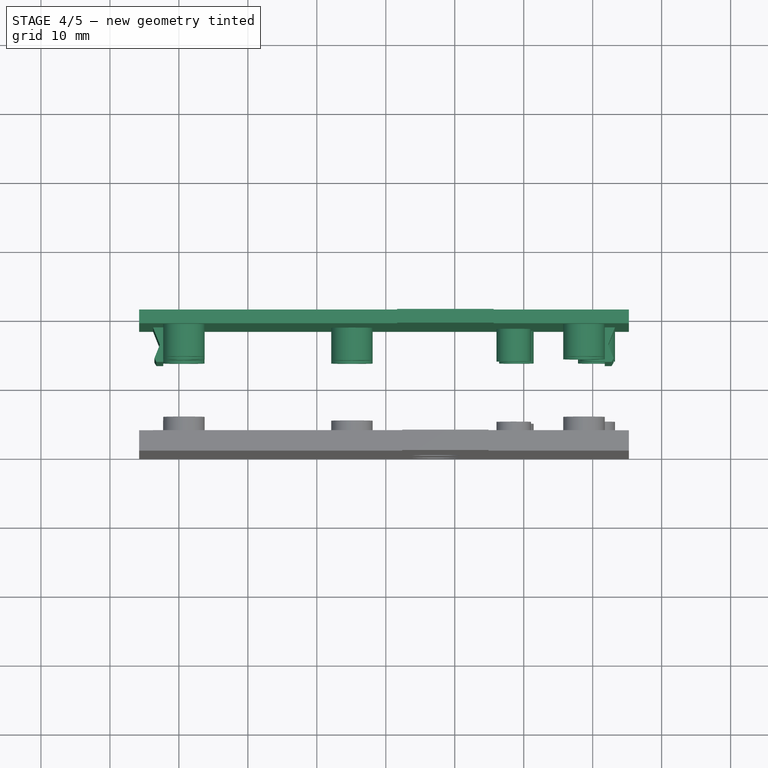
[diagram: stage 4 of 5 — top view after this stage's code; geometry added in this stage tinted green]
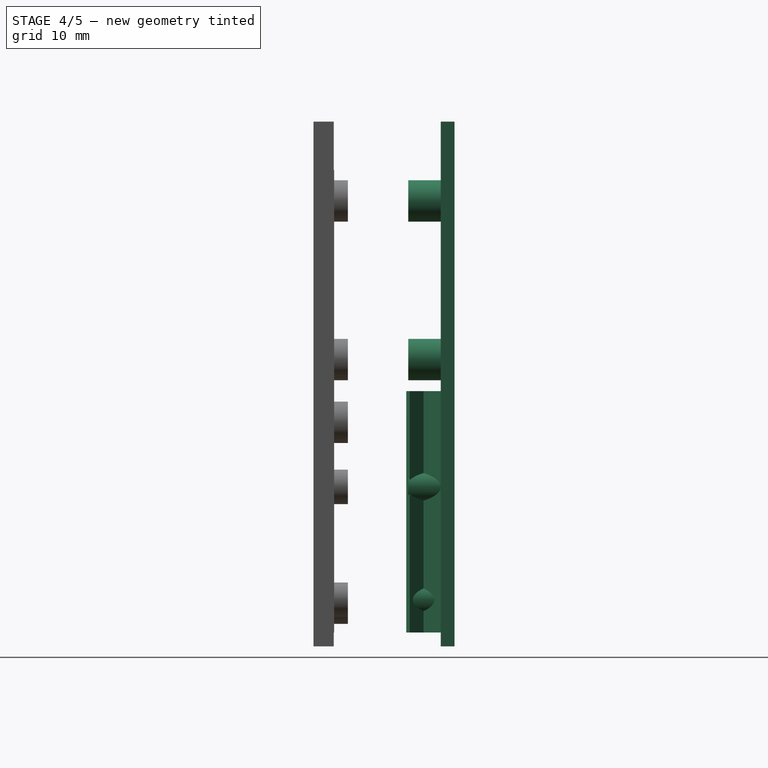
[diagram: stage 4 of 5 — right view after this stage's code; geometry added in this stage tinted green]
FEATURE [Sketcher::SketchObject] Sketch006  label="mountingPoleScrewInlets"
  ExternalGeometry = -> [Pad001]
  FullyConstrained = true
  MapMode = 5
  Placement = pos=(-5e-16,-5,3e-16) rot=(-1,0,0;1.5708rad)
  Support = -> [Pad001]
  expr: Constraints[20] = 1.375 - 0.25
  expr: Constraints[12] = 1.02 - 0.25
  expr: Constraints[4] = 1.25 - 0.25
  sketch-geometry (12):
    g0: Circle CenterX=-29.29 CenterY=33.77 CenterZ=0 NormalX=0 NormalY=0 NormalZ=1 AngleXU=0 Radius=1
    g1: Circle CenterX=-4.91 CenterY=33.77 CenterZ=0 NormalX=0 NormalY=0 NormalZ=1 AngleXU=0 Radius=1
    g2: Circle CenterX=-4.91 CenterY=7.54 CenterZ=0 NormalX=0 NormalY=0 NormalZ=1 AngleXU=0 Radius=1
    g3: Circle CenterX=-29.29 CenterY=7.54 CenterZ=0 NormalX=0 NormalY=0 NormalZ=1 AngleXU=0 Radius=1
    g4: Circle CenterX=18.93 CenterY=33.28 CenterZ=0 NormalX=0 NormalY=0 NormalZ=1 AngleXU=0 Radius=0.77
    g5: Circle CenterX=30.36 CenterY=33.28 CenterZ=0 NormalX=0 NormalY=0 NormalZ=1 AngleXU=0 Radius=0.77
    g6: Circle CenterX=18.55 CenterY=16.9 CenterZ=0 NormalX=0 NormalY=0 NormalZ=1 AngleXU=0 Radius=0.77
    g7: Circle CenterX=30.74 CenterY=16.9 CenterZ=0 NormalX=0 NormalY=0 NormalZ=1 AngleXU=0 Radius=0.77
    g8: Circle CenterX=-29.26 CenterY=-1.55 CenterZ=0 NormalX=0 NormalY=0 NormalZ=1 AngleXU=0 Radius=1.125
    g9: Circle CenterX=-29.26 CenterY=-24.55 CenterZ=0 NormalX=0 NormalY=0 NormalZ=1 AngleXU=0 Radius=1.125
    g10: Circle CenterX=28.74 CenterY=-24.55 CenterZ=0 NormalX=0 NormalY=0 NormalZ=1 AngleXU=0 Radius=1.125
    g11: Circle CenterX=28.74 CenterY=-1.55 CenterZ=0 NormalX=0 NormalY=0 NormalZ=1 AngleXU=0 Radius=1.125
  constraints (24):
    c: Coincident(g0,g-3)
    c: Coincident(g1,g-4)
    c: Coincident(g2,g-5)
    c: Coincident(g3,g-6)
    c: Radius(g0) = 1
    c: Equal(g0,g3)
    c: Equal(g0,g2)
    c: Equal(g0,g1)
    c: Coincident(g4,g-14)
    c: Coincident(g5,g-13)
    c: Coincident(g6,g-11)
    c: Coincident(g7,g-12)
    c: Radius(g7) = 0.77
    c: Equal(g7,g6)
    c: Equal(g7,g4)
    c: Equal(g7,g5)
    c: Coincident(g8,g-7)
    c: Coincident(g9,g-8)
    c: Coincident(g10,g-9)
    c: Coincident(g11,g-10)
    c: Radius(g11) = 1.125
    c: Equal(g11,g8)
    c: Equal(g11,g9)
    c: Equal(g11,g10)
FEATURE [Sketcher::SketchObject] Sketch007  label="caseLidBase"
  FullyConstrained = true
  Placement = pos=(0,10.46,0) rot=(1,0,0;1.5708rad)
  Support = -> [Origin004,X_Axis004]
  expr: Constraints[16] = 30 + 4 + 4 + 33.08
  expr: Constraints[17] = 14
  sketch-geometry (14):
    g0: LineSegment StartX=-35.76 StartY=31.05 StartZ=0 EndX=1.64 EndY=31.05 EndZ=0
    g1: LineSegment StartX=35.24 StartY=31.05 StartZ=0 EndX=35.24 EndY=-40.03 EndZ=0
    g2: LineSegment StartX=35.24 StartY=-40.03 StartZ=0 EndX=-35.76 EndY=-40.03 EndZ=0
    g3: LineSegment StartX=-35.76 StartY=-40.03 StartZ=0 EndX=-35.76 EndY=31.05 EndZ=0
    g4: LineSegment StartX=15.64 StartY=31.05 StartZ=0 EndX=15.64 EndY=36.05 EndZ=0
    g5: LineSegment StartX=15.64 StartY=36.05 StartZ=0 EndX=1.64 EndY=36.05 EndZ=0
    g6: LineSegment StartX=1.64 StartY=36.05 StartZ=0 EndX=1.64 EndY=31.05 EndZ=0
    g7: LineSegment StartX=15.64 StartY=31.05 StartZ=0 EndX=35.24 EndY=31.05 EndZ=0
    g8: LineSegment StartX=0 StartY=0 StartZ=0 EndX=0 EndY=28.05 EndZ=0
    g9: LineSegment StartX=0 StartY=14.37 StartZ=0 EndX=-32.76 EndY=14.37 EndZ=0
    g10: LineSegment StartX=0 StartY=14.37 StartZ=0 EndX=32.24 EndY=14.37 EndZ=0
    g11: LineSegment StartX=35.24 StartY=28.88 StartZ=0 EndX=8.64 EndY=28.88 EndZ=0
    g12: LineSegment StartX=1.64 StartY=31.05 StartZ=0 EndX=8.64 EndY=28.88 EndZ=0
    g13: LineSegment StartX=15.64 StartY=31.05 StartZ=0 EndX=8.64 EndY=28.88 EndZ=0
  constraints (41):
    c: Coincident(g7,g1)
    c: Coincident(g1,g2)
    c: Coincident(g2,g3)
    c: Coincident(g3,g0)
    c: Horizontal(g0)
    c: Horizontal(g2)
    c: Vertical(g1)
    c: Vertical(g3)
    c: Coincident(g4,g5)
    c: Coincident(g5,g6)
    c: Horizontal(g5)
    c: Vertical(g4)
    c: Vertical(g6)
    c: Tangent(g0,g7)
    c: Coincident(g0,g6)
    c: Coincident(g7,g4)
    c: DistanceY(g3,g3) = 71.08
    c: DistanceX(g5,g5) = 14
    c: Coincident(g8,g-1)
    c: PointOnObject(g8,g-2)
    c: DistanceY(g8,g8) = 28.05
    c: DistanceY(g8,g0) = 3
    c: PointOnObject(g9,g8)
    c: Horizontal(g9)
    c: DistanceX(g9,g9) = 32.76
    c: DistanceX(g0,g9) = 3
    c: Coincident(g10,g9)
    c: Horizontal(g10)
    c: DistanceX(g10,g10) = 32.24
    c: DistanceX(g10,g1) = 3
    c: DistanceY(g4,g4) = 5
    c: PointOnObject(g11,g1)
    c: Horizontal(g11)
    c: DistanceX(g11,g11) = 26.6
    c: Coincident(g12,g0)
    c: Coincident(g12,g11)
    c: Coincident(g13,g4)
    c: Coincident(g13,g11)
    c: Equal(g13,g12)
    c: DistanceY(g11,g1) = 2.17
    c: DistanceY(g9,g0) = 16.68
FEATURE [PartDesign::Pad] Pad003  label="lidBase"
  Direction = (1,1,1)
  Length = 2
  Length2 = 100
  Placement = pos=(0,10.46,0) rot=(1,0,0;1.5708rad)
  Profile = -> Sketch007
  Type = 0
FEATURE [Sketcher::SketchObject] Sketch009  label="BaseHoles001"
  FullyConstrained = true
  MapMode = 5
  Placement = pos=(0,8.5,0) rot=(-1,0,0;1.5708rad)
  expr: Constraints[60] = 11.43 / 2
  sketch-geometry (32):
    g0: LineSegment StartX=33.24 StartY=-29.05 StartZ=0 EndX=28.74 EndY=-29.05 EndZ=0
    g1: LineSegment StartX=28.74 StartY=-29.05 StartZ=0 EndX=28.74 EndY=-24.55 EndZ=0
    g2: LineSegment StartX=28.74 StartY=-24.55 StartZ=0 EndX=33.24 EndY=-24.55 EndZ=0
    g3: LineSegment StartX=33.24 StartY=-24.55 StartZ=0 EndX=33.24 EndY=-29.05 EndZ=0
    g4: LineSegment StartX=-33.76 StartY=38.03 StartZ=0 EndX=-29.29 EndY=38.03 EndZ=0
    g5: LineSegment StartX=-29.29 StartY=38.03 StartZ=0 EndX=-29.29 EndY=33.77 EndZ=0
    g6: LineSegment StartX=-29.29 StartY=33.77 StartZ=0 EndX=-33.76 EndY=33.77 EndZ=0
    g7: LineSegment StartX=-33.76 StartY=33.77 StartZ=0 EndX=-33.76 EndY=38.03 EndZ=0
    g8: Circle CenterX=-4.91 CenterY=33.77 CenterZ=0 NormalX=0 NormalY=0 NormalZ=1 AngleXU=0 Radius=3
    g9: Circle CenterX=-29.29 CenterY=33.77 CenterZ=0 NormalX=0 NormalY=0 NormalZ=1 AngleXU=0 Radius=3
    g10: Circle CenterX=-29.29 CenterY=7.54 CenterZ=0 NormalX=0 NormalY=0 NormalZ=1 AngleXU=0 Radius=3
    g11: Circle CenterX=-4.91 CenterY=7.54 CenterZ=0 NormalX=0 NormalY=0 NormalZ=1 AngleXU=0 Radius=3
    g12: LineSegment StartX=33.24 StartY=38.03 StartZ=0 EndX=30.36 EndY=38.03 EndZ=0
    g13: LineSegment StartX=30.36 StartY=38.03 StartZ=0 EndX=30.36 EndY=33.28 EndZ=0
    g14: LineSegment StartX=30.36 StartY=33.28 StartZ=0 EndX=33.24 EndY=33.28 EndZ=0
    g15: LineSegment StartX=33.24 StartY=33.28 StartZ=0 EndX=33.24 EndY=38.03 EndZ=0
    g16: Circle CenterX=30.36 CenterY=33.28 CenterZ=0 NormalX=0 NormalY=0 NormalZ=1 AngleXU=0 Radius=2.5
    g17: Circle CenterX=18.93 CenterY=33.28 CenterZ=0 NormalX=0 NormalY=0 NormalZ=1 AngleXU=0 Radius=2.5
    g18: Circle CenterX=18.55 CenterY=16.9 CenterZ=0 NormalX=0 NormalY=0 NormalZ=1 AngleXU=0 Radius=2.5
    g19: Circle CenterX=30.74 CenterY=16.9 CenterZ=0 NormalX=0 NormalY=0 NormalZ=1 AngleXU=0 Radius=2.5
    g20: LineSegment StartX=18.93 StartY=33.28 StartZ=0 EndX=24.645 EndY=33.28 EndZ=0
    g21: LineSegment StartX=24.645 StartY=33.28 StartZ=0 EndX=24.645 EndY=16.9 EndZ=0
    g22: LineSegment StartX=24.645 StartY=16.9 StartZ=0 EndX=18.93 EndY=16.9 EndZ=0
    g23: LineSegment StartX=18.93 StartY=16.9 StartZ=0 EndX=18.93 EndY=33.28 EndZ=0
    g24: Circle CenterX=28.74 CenterY=-24.55 CenterZ=0 NormalX=0 NormalY=0 NormalZ=1 AngleXU=0 Radius=3
    g25: Circle CenterX=-29.26 CenterY=-24.55 CenterZ=0 NormalX=0 NormalY=0 NormalZ=1 AngleXU=0 Radius=3
    g26: Circle CenterX=-29.26 CenterY=-1.55 CenterZ=0 NormalX=0 NormalY=0 NormalZ=1 AngleXU=0 Radius=3
    g27: Circle CenterX=28.74 CenterY=-1.55 CenterZ=0 NormalX=0 NormalY=0 NormalZ=1 AngleXU=0 Radius=3
    g28: LineSegment StartX=28.74 StartY=-24.55 StartZ=0 EndX=-29.26 EndY=-24.55 EndZ=0
    g29: LineSegment StartX=-29.26 StartY=-24.55 StartZ=0 EndX=-29.26 EndY=-1.55 EndZ=0
    g30: LineSegment StartX=-29.26 StartY=-1.55 StartZ=0 EndX=28.74 EndY=-1.55 EndZ=0
    g31: LineSegment StartX=28.74 StartY=-1.55 StartZ=0 EndX=28.74 EndY=-24.55 EndZ=0
  constraints (87):
    c: Coincident(g0,g1)
    c: Coincident(g1,g2)
    c: Coincident(g2,g3)
    c: Coincident(g3,g0)
    c: Horizontal(g0)
    c: Horizontal(g2)
    c: Vertical(g1)
    c: Vertical(g3)
    c: Coincident(g4,g5)
    c: Coincident(g5,g6)
    c: Coincident(g6,g7)
    c: Coincident(g7,g4)
    c: Horizontal(g4)
    c: Horizontal(g6)
    c: Vertical(g5)
    c: Vertical(g7)
    c: DistanceX(g9,g8) = 24.38
    c: DistanceY(g9,g8) = 0
    c: DistanceY(g10,g11) = 0
    c: DistanceY(g10,g9) = 26.23
    c: DistanceX(g10,g11) = 24.38
    c: DistanceX(g8,g11) = 0
    c: Radius(g10) = 3
    c: Equal(g10,g11)
    c: Equal(g10,g8)
    c: Equal(g10,g9)
    c: DistanceY(g5,g5) = 4.26
    c: DistanceX(g6,g6) = 4.47
    c: Coincident(g9,g5)
    c: DistanceX(g2,g2) = 4.5
    c: DistanceY(g1,g1) = 4.5
    c: Coincident(g12,g13)
    c: Coincident(g13,g14)
    c: Coincident(g14,g15)
    c: Coincident(g15,g12)
    c: Horizontal(g12)
    c: Horizontal(g14)
    c: Vertical(g13)
    c: Vertical(g15)
    c: DistanceX(g14,g14) = 2.88
    c: DistanceY(g13,g13) = 4.75
    c: Coincident(g16,g13)
    c: Radius(g19) = 2.5
    c: Equal(g19,g18)
    c: Equal(g19,g17)
    c: Equal(g19,g16)
    c: DistanceX(g18,g19) = 12.19
    c: DistanceY(g19,g16) = 16.38
    c: DistanceX(g17,g16) = 11.43
    c: DistanceY(g17,g16) = 0
    c: Coincident(g20,g21)
    c: Coincident(g21,g22)
    c: Coincident(g22,g23)
    c: Coincident(g23,g20)
    c: Horizontal(g20)
    c: Horizontal(g22)
    c: Vertical(g21)
    c: Vertical(g23)
    c: Coincident(g20,g17)
    c: DistanceY(g21,g21) = 16.38
    c: DistanceX(g22,g22) = 5.715
    c: Symmetric(g18,g19,g21)
    c: Coincident(g24,g1)
    c: Radius(g27) = 3
    c: Equal(g27,g24)
    c: Equal(g27,g25)
    c: Equal(g27,g26)
    c: Coincident(g28,g29)
    c: Coincident(g29,g30)
    c: Coincident(g30,g31)
    c: Coincident(g31,g28)
    c: Horizontal(g28)
    c: Horizontal(g30)
    c: Vertical(g29)
    c: Vertical(g31)
    c: Coincident(g28,g24)
    c: Coincident(g26,g29)
    c: Coincident(g28,g25)
    c: Coincident(g27,g30)
    c: DistanceX(g30,g30) = 58
    c: DistanceY(g31,g31) = 23
    c: DistanceY(g25,g-1) = 24.55
    c: DistanceX(g25,g-1) = 29.26
    c: DistanceY(g-1,g11) = 7.54
    c: DistanceX(g11,g-1) = 4.91
    c: DistanceY(g22,g8) = 16.87
    c: DistanceX(g8,g22) = 23.84
FEATURE [PartDesign::Pad] Pad004  label="mountReceptacles"
  BaseFeature = -> Pad003
  Direction = (1,1,1)
  Length = 4.75
  Length2 = 100
  Placement = pos=(0,10.46,0) rot=(1,0,0;1.5708rad)
  Profile = -> Sketch009
  Reversed = true
  Type = 0
FEATURE [Sketcher::SketchObject] Sketch010
  ExternalGeometry = -> [Pad004]
  FullyConstrained = true
  MapMode = 5
  Placement = pos=(-1.3e-15,3.75,3.8e-15) rot=(1,0,0;1.5708rad)
  Support = -> [Pad004]
  sketch-geometry (12):
    g0: Circle CenterX=-29.26 CenterY=24.55 CenterZ=0 NormalX=0 NormalY=0 NormalZ=1 AngleXU=0 Radius=1.5
    g1: Circle CenterX=-29.26 CenterY=1.55 CenterZ=0 NormalX=0 NormalY=0 NormalZ=1 AngleXU=0 Radius=1.5
    g2: Circle CenterX=28.74 CenterY=1.55 CenterZ=0 NormalX=0 NormalY=0 NormalZ=1 AngleXU=0 Radius=1.5
    g3: Circle CenterX=28.74 CenterY=24.55 CenterZ=0 NormalX=0 NormalY=0 NormalZ=1 AngleXU=0 Radius=1.5
    g4: Circle CenterX=-29.29 CenterY=-7.54 CenterZ=0 NormalX=0 NormalY=0 NormalZ=1 AngleXU=0 Radius=1.4
    g5: Circle CenterX=-4.91 CenterY=-7.54 CenterZ=0 NormalX=0 NormalY=0 NormalZ=1 AngleXU=0 Radius=1.4
    g6: Circle CenterX=-4.91 CenterY=-33.77 CenterZ=0 NormalX=0 NormalY=0 NormalZ=1 AngleXU=0 Radius=1.4
    g7: Circle CenterX=-29.29 CenterY=-33.77 CenterZ=0 NormalX=0 NormalY=0 NormalZ=1 AngleXU=0 Radius=1.4
    g8: Circle CenterX=18.55 CenterY=-16.9 CenterZ=0 NormalX=0 NormalY=0 NormalZ=1 AngleXU=0 Radius=1.12
    g9: Circle CenterX=30.74 CenterY=-16.9 CenterZ=0 NormalX=0 NormalY=0 NormalZ=1 AngleXU=0 Radius=1.12
    g10: Circle CenterX=30.36 CenterY=-33.28 CenterZ=0 NormalX=0 NormalY=0 NormalZ=1 AngleXU=0 Radius=1.12
    g11: Circle CenterX=18.93 CenterY=-33.28 CenterZ=0 NormalX=0 NormalY=0 NormalZ=1 AngleXU=0 Radius=1.12
  constraints (24):
    c: Coincident(g0,g-3)
    c: Coincident(g1,g-4)
    c: Coincident(g2,g-5)
    c: Coincident(g3,g-6)
    c: Radius(g3) = 1.5
    c: Equal(g3,g2)
    c: Equal(g3,g1)
    c: Equal(g3,g0)
    c: Coincident(g4,g-8)
    c: Coincident(g5,g-7)
    c: Coincident(g6,g-10)
    c: Coincident(g7,g-9)
    c: Coincident(g8,g-12)
    c: Coincident(g9,g-13)
    c: Coincident(g10,g-14)
    c: Coincident(g11,g-11)
    c: Radius(g4) = 1.4
    c: Equal(g4,g5)
    c: Equal(g4,g6)
    c: Equal(g4,g7)
    c: Radius(g8) = 1.12
    c: Equal(g8,g9)
    c: Equal(g8,g10)
    c: Equal(g8,g11)
FEATURE [PartDesign::Pocket] Pocket001  label="receptaclePockets"
  BaseFeature = -> Pad004
  Length = 4.75
  Length2 = 100
  Placement = pos=(0,10.46,0) rot=(1,0,0;1.5708rad)
  Profile = -> Sketch010
  Type = 0
FEATURE [PartDesign::Plane] DatumPlane  label="snapFitPlane"
  AttachmentOffset = pos=(0,0,-2) rot=(0,0,1;0rad)
  Length = 82.9164
  MapMode = 5
  Placement = pos=(0,10.46,-38.03) rot=(1,0,0;3.14159rad)
  ResizeMode = 0
  Support = -> [Pocket001]
  Width = 61.9164
FEATURE [Sketcher::SketchObject] Sketch016  label="snapFitFemaleSketch"
  ExternalGeometry = -> [Pocket001]
  FullyConstrained = true
  MapMode = 5
  Placement = pos=(0,10.46,-38.03) rot=(1,0,0;3.14159rad)
  Support = -> [DatumPlane]
  sketch-geometry (18):
    g0: LineSegment StartX=-33.76 StartY=2 StartZ=0 EndX=-33.76 EndY=7 EndZ=0
    g1: LineSegment StartX=-33.76 StartY=7 StartZ=0 EndX=-32.76 EndY=4.5 EndZ=0
    g2: LineSegment StartX=-32.76 StartY=4.5 StartZ=0 EndX=-33.76 EndY=2 EndZ=0
    g3: LineSegment StartX=33.24 StartY=2 StartZ=0 EndX=33.24 EndY=7 EndZ=0
    g4: LineSegment StartX=33.24 StartY=7 StartZ=0 EndX=32.24 EndY=4.5 EndZ=0
    g5: LineSegment StartX=32.24 StartY=4.5 StartZ=0 EndX=33.24 EndY=2 EndZ=0
    g6: LineSegment StartX=-33.76 StartY=2 StartZ=0 EndX=-32.76 EndY=4.5 EndZ=0
    g7: LineSegment StartX=-32.76 StartY=4.5 StartZ=0 EndX=-33.56 EndY=6.5 EndZ=0
    g8: LineSegment StartX=-33.26 StartY=7 StartZ=0 EndX=-32.26 EndY=7 EndZ=0
    g9: LineSegment StartX=-32.26 StartY=7 StartZ=0 EndX=-32.26 EndY=2 EndZ=0
    g10: LineSegment StartX=-33.76 StartY=2 StartZ=0 EndX=-32.26 EndY=2 EndZ=0
    g11: LineSegment StartX=33.24 StartY=2 StartZ=0 EndX=32.24 EndY=4.5 EndZ=0
    g12: LineSegment StartX=33.04 StartY=6.5 StartZ=0 EndX=32.24 EndY=4.5 EndZ=0
    g13: LineSegment StartX=32.74 StartY=7 StartZ=0 EndX=31.74 EndY=7 EndZ=0
    g14: LineSegment StartX=31.74 StartY=7 StartZ=0 EndX=31.74 EndY=2 EndZ=0
    g15: LineSegment StartX=31.74 StartY=2 StartZ=0 EndX=33.24 EndY=2 EndZ=0
    g16: LineSegment StartX=-33.56 StartY=6.5 StartZ=0 EndX=-33.26 EndY=7 EndZ=0
    g17: LineSegment StartX=32.74 StartY=7 StartZ=0 EndX=33.04 EndY=6.5 EndZ=0
  constraints (50):
    c: Vertical(g0)
    c: Coincident(g1,g0)
    c: Coincident(g2,g1)
    c: Coincident(g4,g3)
    c: Coincident(g5,g4)
    c: Angle(g3,g-5) = 3.14159
    c: Equal(g4,g5)
    c: DistanceY(g3,g3) = 5
    c: DistanceX(g4,g3) = 1
    c: Equal(g1,g2)
    c: DistanceY(g0,g0) = 5
    c: DistanceX(g0,g1) = 1
    c: Coincident(g6,g1)
    c: Coincident(g7,g6)
    c: Horizontal(g8)
    c: Coincident(g9,g8)
    c: PointOnObject(g9,g-3)
    c: Vertical(g9)
    c: Coincident(g10,g9)
    c: DistanceX(g0,g8) = 1.5
    c: Coincident(g11,g4)
    c: Coincident(g12,g11)
    c: Horizontal(g13)
    c: Coincident(g14,g13)
    c: PointOnObject(g14,g-3)
    c: Vertical(g14)
    c: Coincident(g15,g14)
    c: DistanceX(g13,g3) = 1.5
    c: Coincident(g0,g2)
    c: Coincident(g6,g0)
    c: Coincident(g10,g6)
    c: Angle(g9,g10) = 1.5708
    c: DistanceX(g-4,g6) = 2
    c: Coincident(g15,g11)
    c: Coincident(g5,g3)
    c: Coincident(g3,g11)
    c: Angle(g15,g14) = 1.5708
    c: DistanceX(g11,g-5) = 2
    c: Coincident(g8,g16)
    c: Coincident(g7,g16)
    c: DistanceY(g9,g9) = 5
    c: DistanceX(g8,g8) = 1
    c: PointOnObject(g7,g1)
    c: DistanceY(g7,g7) = 2
    c: Coincident(g13,g17)
    c: Coincident(g12,g17)
    c: PointOnObject(g12,g4)
    c: DistanceY(g12,g12) = 2
    c: DistanceX(g13,g13) = 1
    c: DistanceY(g14,g14) = 5
FEATURE [PartDesign::Pad] Pad006  label="snapFitFemale"
  BaseFeature = -> Pocket001
  Direction = (1,1,1)
  Length = 35
  Length2 = 100
  Placement = pos=(0,10.46,0) rot=(1,0,0;1.5708rad)
  Profile = -> Sketch016
  Reversed = true
  Type = 0
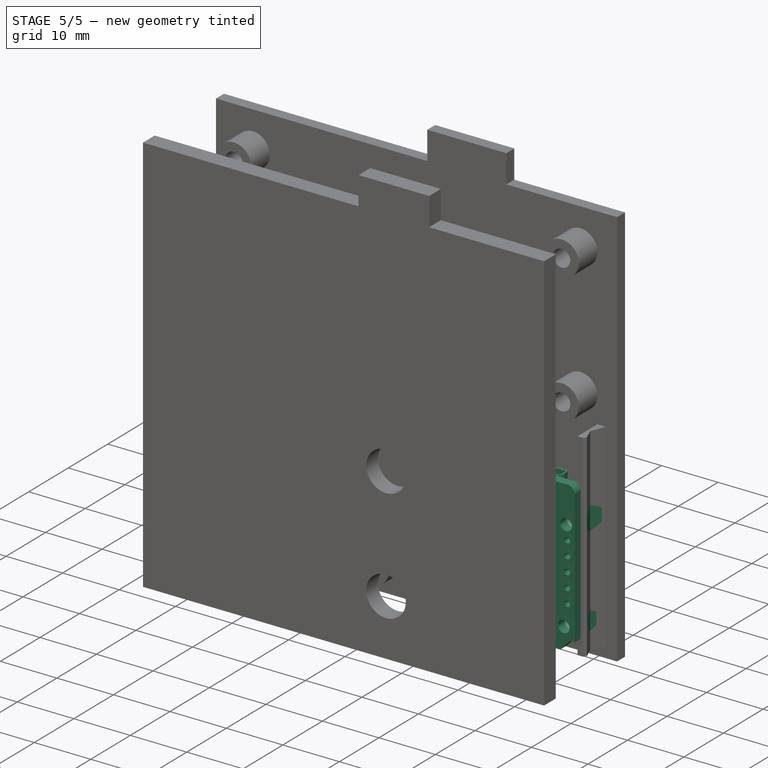
[diagram: stage 5 of 5 — iso view after this stage's code; geometry added in this stage tinted green]
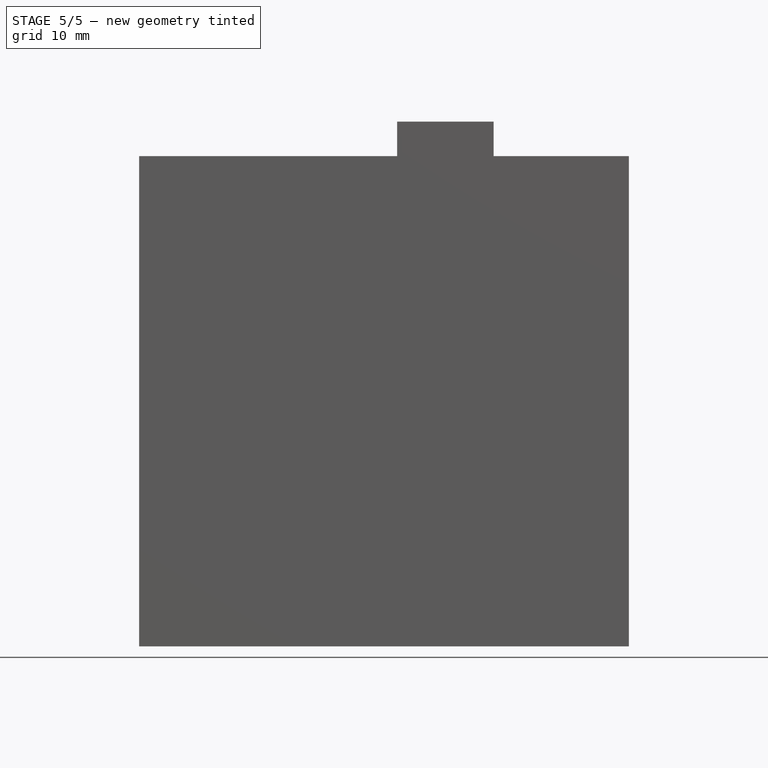
[diagram: stage 5 of 5 — front view after this stage's code; geometry added in this stage tinted green]
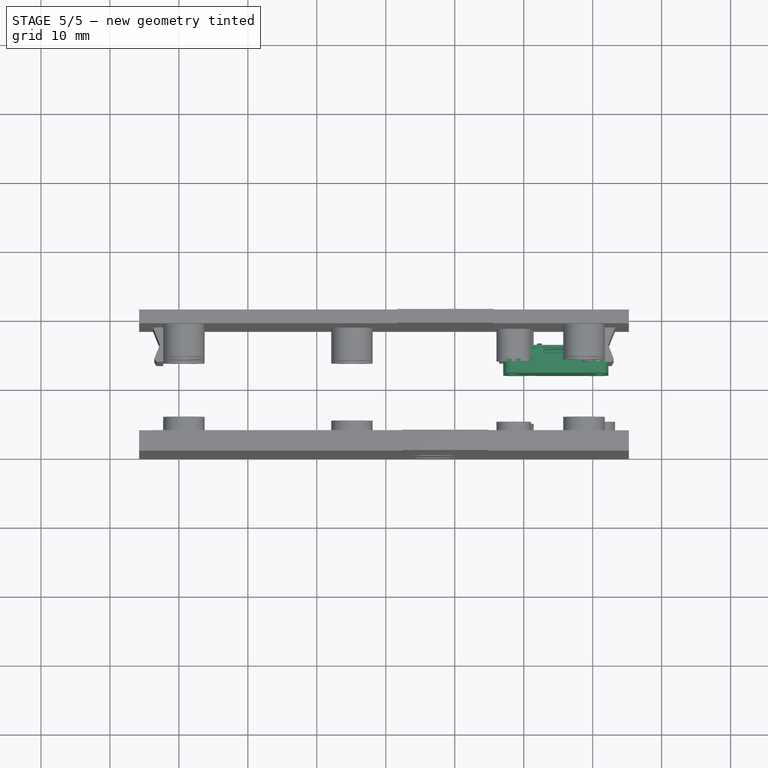
[diagram: stage 5 of 5 — top view after this stage's code; geometry added in this stage tinted green]
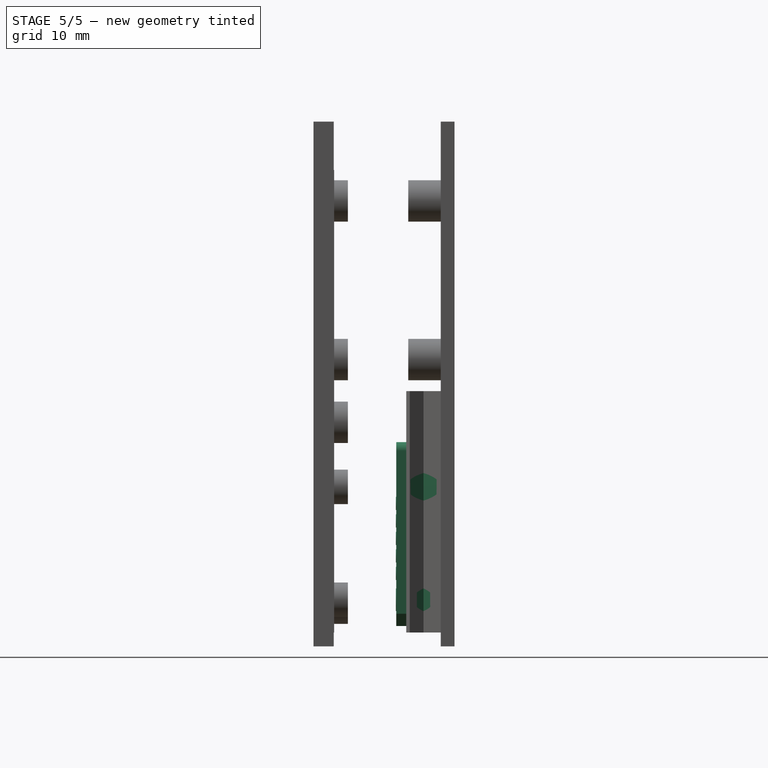
[diagram: stage 5 of 5 — right view after this stage's code; geometry added in this stage tinted green]
FEATURE [Part::Feature] Feature  label="RapberryPiZero"
  Placement = pos=(51,-25,0) rot=(0,0,1;0rad)
  shape: bbox 65.03 x 4.481 x 31.26 mm, 6056 faces, 137 solids (baked)
FEATURE [Part::Feature] Solid
  shape: bbox 15.24 x 1.702 x 26.67 mm, 113 faces (baked)
FEATURE [Part::Feature] Solid001
  shape: bbox 3.429 x 1.27 x 2.921 mm, 8 faces (baked)
FEATURE [Part::Feature] Solid002
  shape: bbox 1.803 x 1.778 x 1.803 mm, 4 faces (baked)
FEATURE [Part::Feature] Solid003
  shape: bbox 1.092 x 0.508 x 1.016 mm, 6 faces (baked)
FEATURE [Part::Feature] Solid004
  shape: bbox 0.762 x 0.508 x 0.8382 mm, 6 faces (baked)
FEATURE [Part::Feature] Solid005
  shape: bbox 0.762 x 0.508 x 0.8382 mm, 6 faces (baked)
FEATURE [Part::Feature] Solid006
  shape: bbox 1.092 x 0.508 x 1.016 mm, 6 faces (baked)
FEATURE [Part::Feature] Solid007 .. Solid010  x4 (patterned run collapsed; names and placements below)
  shape: bbox 0.762 x 0.508 x 0.4064 mm, 6 faces (baked)
FEATURE [Part::Feature] Solid011 .. Solid014  x4 (patterned run collapsed; names and placements below)
  shape: bbox 1.092 x 0.508 x 0.4572 mm, 6 faces (baked)
FEATURE [Part::Feature] Solid015
  shape: bbox 2.413 x 0.762 x 1.6 mm, 6 faces (baked)
FEATURE [Part::Feature] Solid016
  shape: bbox 2.413 x 0.762 x 1.6 mm, 6 faces (baked)
FEATURE [Part::Feature] Solid017
  shape: bbox 1.376 x 0.762 x 2.868 mm, 6 faces (baked)
FEATURE [Part::Feature] Solid018
  shape: bbox 2.137 x 0.762 x 2.031 mm, 6 faces (baked)
FEATURE [Part::Feature] Solid019
  shape: bbox 0.762 x 0.508 x 1.118 mm, 6 faces (baked)
FEATURE [Part::Feature] Solid020
  shape: bbox 0.762 x 0.508 x 1.118 mm, 6 faces (baked)
FEATURE [Part::Feature] Solid021 .. Solid024  x4 (patterned run collapsed; names and placements below)
  shape: bbox 0.762 x 0.508 x 0.3048 mm, 6 faces (baked)
FEATURE [Part::Feature] Solid025
  shape: bbox 0.762 x 0.508 x 1.118 mm, 6 faces (baked)
FEATURE [Part::Feature] Solid026
  shape: bbox 0.762 x 0.508 x 1.118 mm, 6 faces (baked)
FEATURE [Part::Feature] Solid027 .. Solid030  x4 (patterned run collapsed; names and placements below)
  shape: bbox 0.762 x 0.254 x 0.4064 mm, 6 faces (baked)
FEATURE [Part::Feature] Solid031
  shape: bbox 7.8 x 2.71 x 5 mm, 369 faces (baked)
FEATURE [Part::Feature] Solid032
  shape: bbox 0.304 x 0.698 x 0.508 mm, 8 faces (baked)
FEATURE [Part::Feature] Solid033 .. Solid036  x4 (patterned run collapsed; names and placements below)
  shape: bbox 0.508 x 0.698 x 0.304 mm, 8 faces (baked)
FEATURE [Part::Feature] Solid037
  shape: bbox 0.304 x 0.698 x 0.508 mm, 8 faces (baked)
FEATURE [Part::Feature] Solid038
  shape: bbox 0.304 x 0.698 x 0.508 mm, 8 faces (baked)
FEATURE [Part::Feature] Solid039
  shape: bbox 4.952 x 1.346 x 4.952 mm, 6 faces (baked)
FEATURE [Part::Feature] Solid040
  shape: bbox 0.508 x 0.698 x 0.304 mm, 8 faces (baked)
FEATURE [Part::Feature] Solid041
  shape: bbox 0.508 x 0.698 x 0.304 mm, 8 faces (baked)
FEATURE [Part::Feature] Solid042
  shape: bbox 0.304 x 0.698 x 0.508 mm, 8 faces (baked)
FEATURE [Part::Feature] Solid043 .. Solid046  x4 (patterned run collapsed; names and placements below)
  shape: bbox 0.508 x 0.698 x 0.304 mm, 8 faces (baked)
FEATURE [Part::Feature] Solid047
  shape: bbox 0.2477 x 0.003 x 0.2477 mm, 4 faces (baked)
FEATURE [Part::Feature] Solid048
  shape: bbox 0.304 x 0.698 x 0.508 mm, 8 faces (baked)
FEATURE [Part::Feature] Solid049
  shape: bbox 0.508 x 0.698 x 0.304 mm, 8 faces (baked)
FEATURE [Part::Feature] Solid050
  shape: bbox 0.304 x 0.698 x 0.508 mm, 8 faces (baked)
FEATURE [Part::Feature] Solid051
  shape: bbox 0.304 x 0.698 x 0.508 mm, 8 faces (baked)
FEATURE [Part::Feature] Solid052
  shape: bbox 0.508 x 0.698 x 0.304 mm, 8 faces (baked)
FEATURE [Part::Feature] Solid053 .. Solid057  x5 (patterned run collapsed; names and placements below)
  shape: bbox 0.304 x 0.698 x 0.508 mm, 8 faces (baked)
FEATURE [Part::Feature] Solid058
  shape: bbox 0.508 x 0.698 x 0.304 mm, 8 faces (baked)
FEATURE [Part::Feature] Solid059
  shape: bbox 0.508 x 0.698 x 0.304 mm, 8 faces (baked)
FEATURE [Part::Feature] Solid060
  shape: bbox 0.508 x 0.698 x 0.304 mm, 8 faces (baked)
FEATURE [Part::Feature] Solid061 .. Solid064  x4 (patterned run collapsed; names and placements below)
  shape: bbox 0.304 x 0.698 x 0.508 mm, 8 faces (baked)
FEATURE [Part::Feature] Solid065
  shape: bbox 0.508 x 0.698 x 0.304 mm, 8 faces (baked)
FEATURE [Part::Feature] Solid066
  shape: bbox 3.404 x 0.051 x 3.404 mm, 6 faces (baked)
FEATURE [Part::Compound2] Compound  label="TrinketM0"
  Links = -> [Solid,Solid001,Solid002,Solid003,Solid004,Solid005,Solid006,Solid007,Solid008,Solid009,Solid010,Solid011,Solid012,Solid013,Solid014,Solid015,Solid016,Solid017,Solid018,Solid019,Solid020,Solid021,Solid022,Solid023,Solid024,Solid025,Solid026,Solid027,Solid028,Solid029,Solid030,Solid031,Solid032,Solid033,Solid034,Solid035,Solid036,Solid037,Solid038,Solid039,Solid040,Solid041,Solid042,Solid043,+23 more]
  Placement = pos=(24.65,2,-23.75) rot=(0,1,0;3.14159rad)
FEATURE [Sketcher::SketchObject] Sketch017  label="mountHoleRedoSketch"
  ExternalGeometry = -> [Pad006]
  FullyConstrained = true
  MapMode = 5
  Placement = pos=(0,3.75,1.5e-15) rot=(1,0,0;1.5708rad)
  Support = -> [Pad006]
  sketch-geometry (1):
    g0: Circle CenterX=30.74 CenterY=-16.9 CenterZ=0 NormalX=0 NormalY=0 NormalZ=1 AngleXU=0 Radius=1.12
  constraints (2):
    c: Coincident(g0,g-3)
    c: Radius(g0) = 1.12
FEATURE [PartDesign::Pocket] Pocket007  label="mountHoleRedo"
  BaseFeature = -> Pad006
  Length = 9.5
  Length2 = 100
  Midplane = true
  Placement = pos=(0,10.46,0) rot=(1,0,0;1.5708rad)
  Profile = -> Sketch017
  Type = 0
  expr: Length = 4.75 * 2
FEATURE [Sketcher::SketchObject] Sketch018  label="snapFitFemaleRedoSketch"
  ExternalGeometry = -> [Pocket007]
  FullyConstrained = true
  MapMode = 5
  Placement = pos=(8.7e-15,10.46,-38.03) rot=(1,0,0;3.14159rad)
  Support = -> [Pocket007]
  sketch-geometry (6):
    g0: LineSegment StartX=35.24 StartY=2 StartZ=0 EndX=33.24 EndY=2 EndZ=0
    g1: LineSegment StartX=33.24 StartY=2 StartZ=0 EndX=32.24 EndY=4.5 EndZ=0
    g2: LineSegment StartX=33.04 StartY=6.5 StartZ=0 EndX=32.24 EndY=4.5 EndZ=0
    g3: LineSegment StartX=32.74 StartY=7 StartZ=0 EndX=33.04 EndY=6.5 EndZ=0
    g4: LineSegment StartX=32.74 StartY=7 StartZ=0 EndX=35.24 EndY=7 EndZ=0
    g5: LineSegment StartX=35.24 StartY=2 StartZ=0 EndX=35.24 EndY=7 EndZ=0
  constraints (13):
    c: Coincident(g0,g-6)
    c: Coincident(g0,g-5)
    c: Coincident(g1,g0)
    c: Coincident(g1,g-5)
    c: Coincident(g2,g-4)
    c: Coincident(g2,g1)
    c: Coincident(g3,g-3)
    c: Coincident(g3,g2)
    c: Coincident(g4,g3)
    c: Horizontal(g4)
    c: Coincident(g5,g0)
    c: Vertical(g5)
    c: Coincident(g4,g5)
FEATURE [PartDesign::Pocket] Pocket008  label="snapFitRedo"
  BaseFeature = -> Pocket007
  Length = 35
  Length2 = 100
  Placement = pos=(0,10.46,0) rot=(1,0,0;1.5708rad)
  Profile = -> Sketch018
  Type = 0
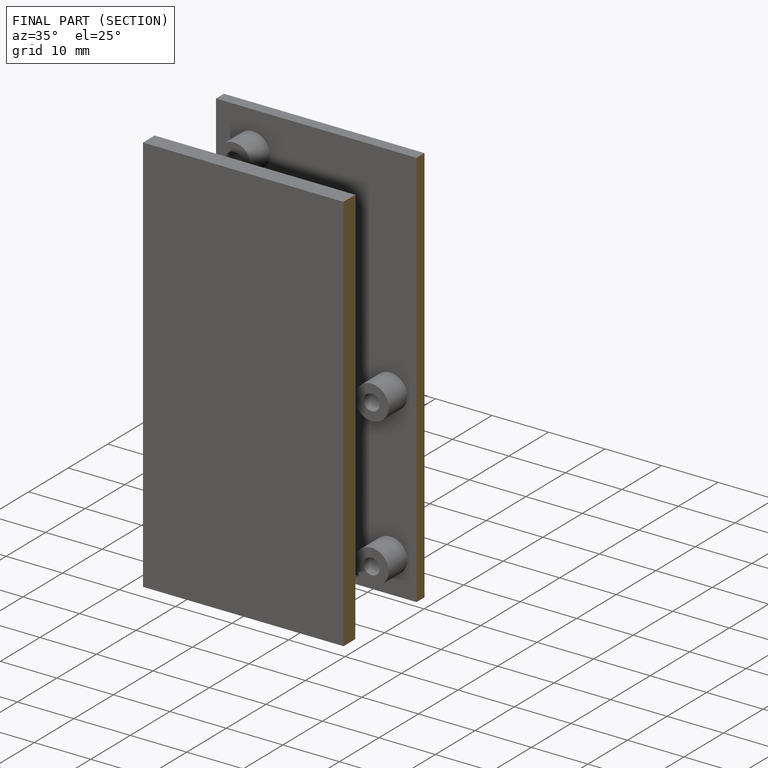
[diagram: finished part — half-section view (interior)]
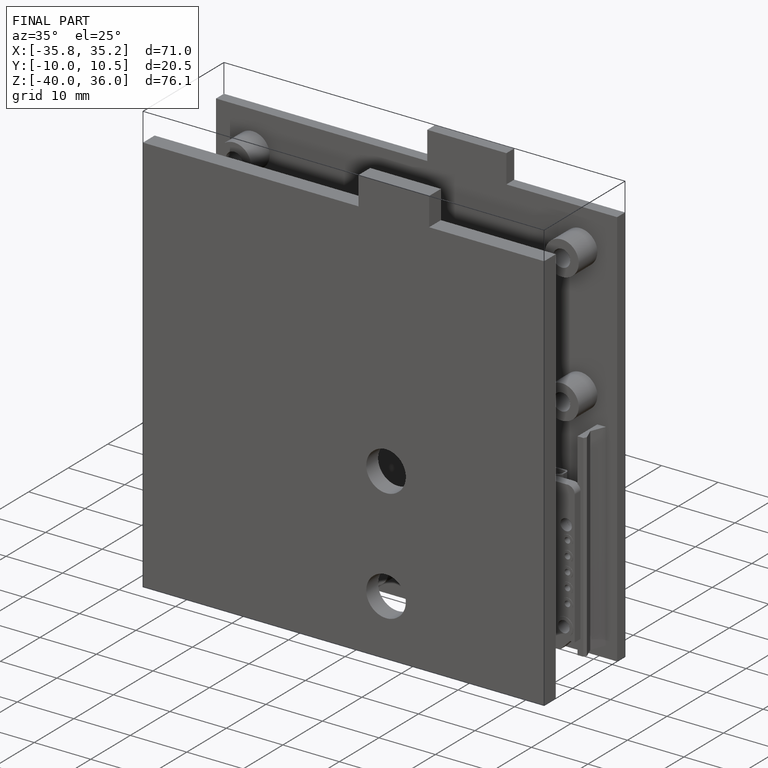
[diagram: finished part — iso view with bounding-box wireframe]
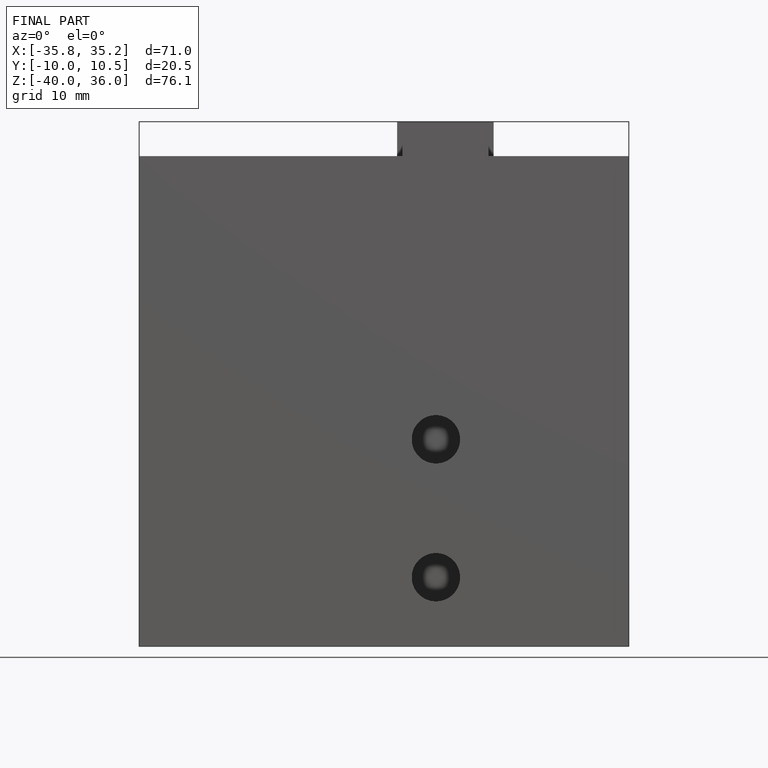
[diagram: finished part — front view with bounding-box wireframe]
